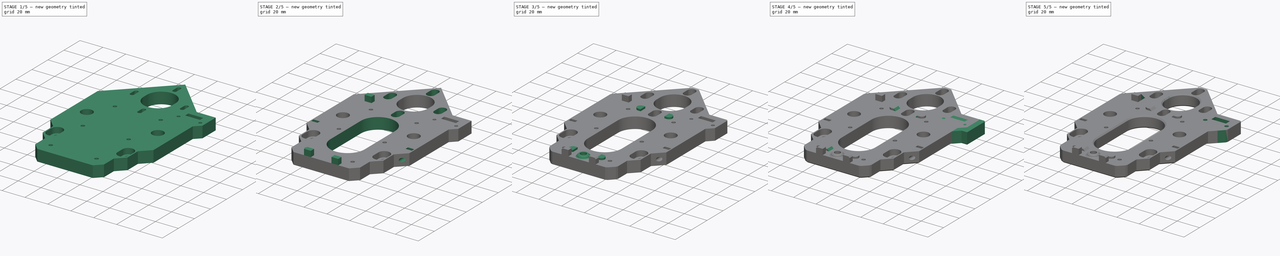
[diagram: build sequence overview — one tinted view per stage of 5, left to right]
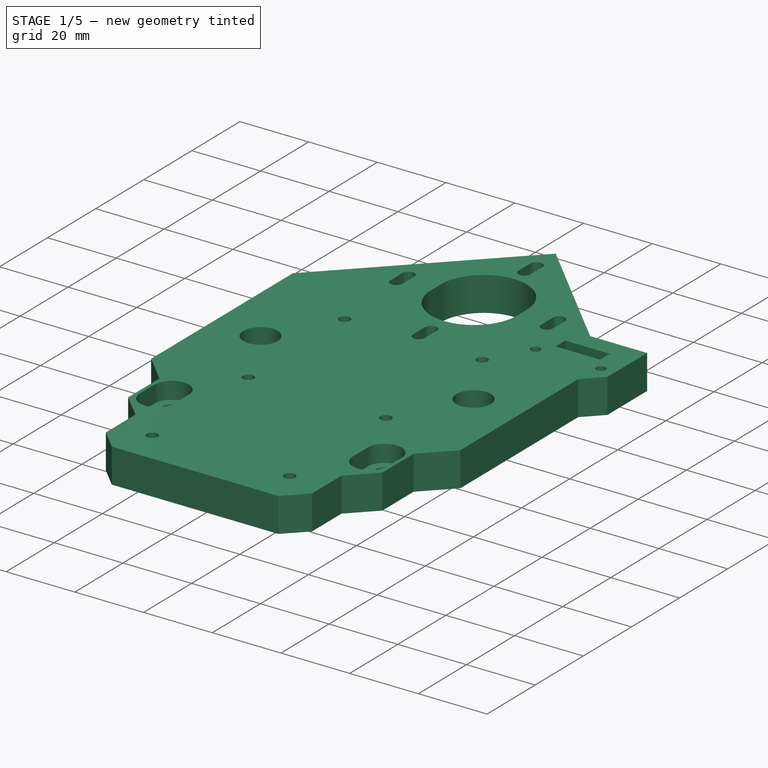
[diagram: stage 1 of 5 — iso view after this stage's code; geometry added in this stage tinted green]
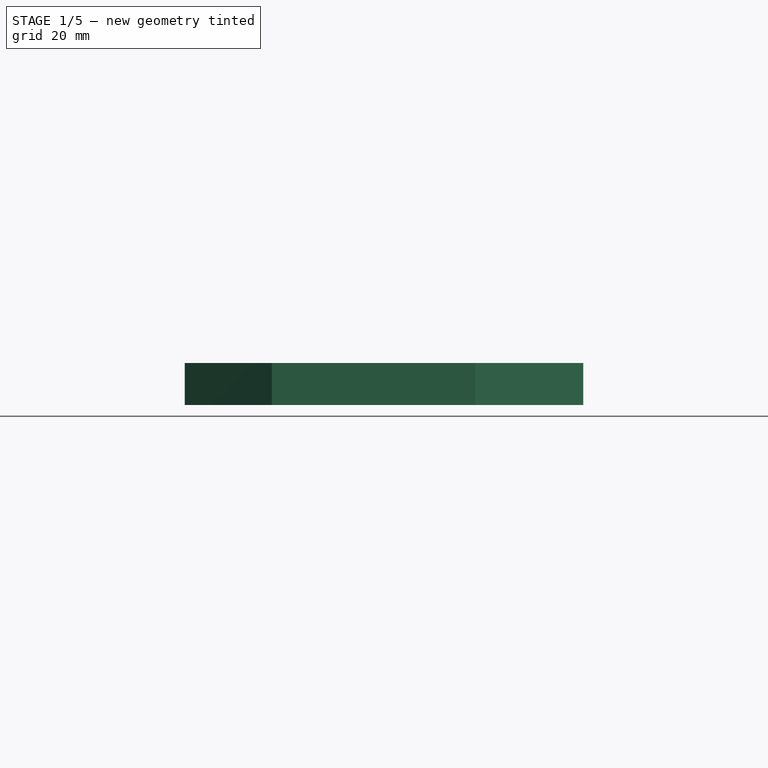
[diagram: stage 1 of 5 — front view after this stage's code; geometry added in this stage tinted green]
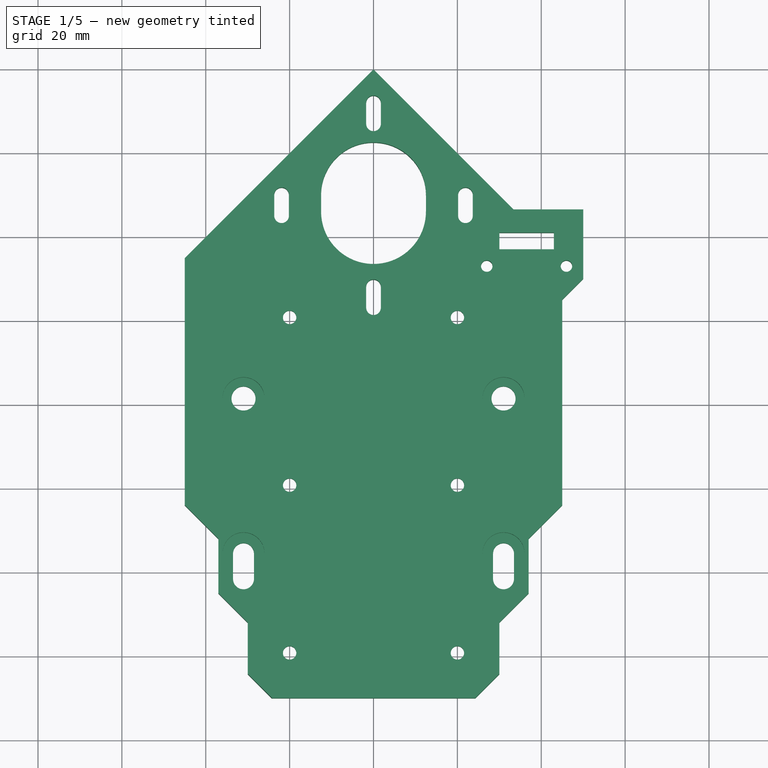
[diagram: stage 1 of 5 — top view after this stage's code; geometry added in this stage tinted green]
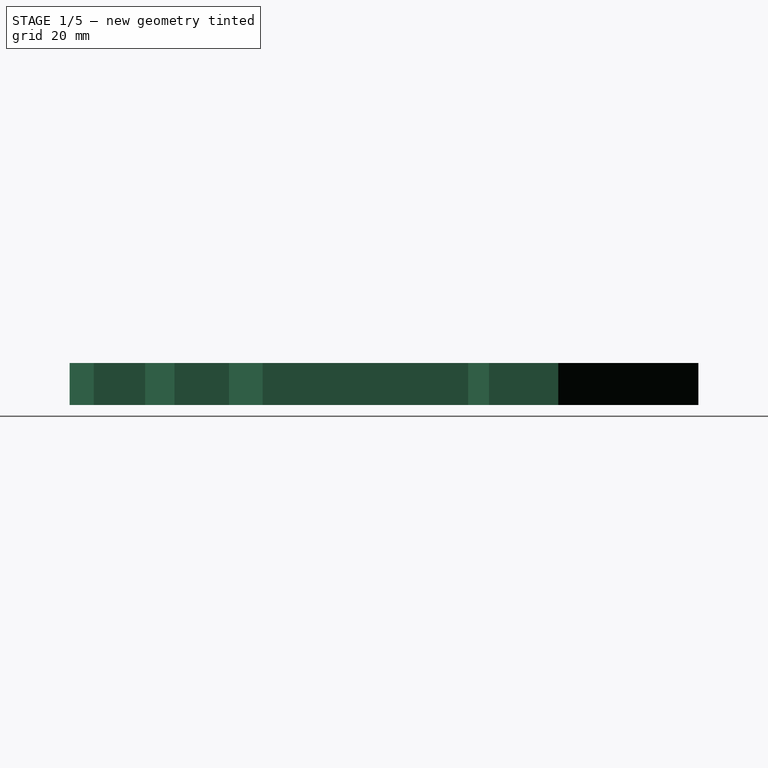
[diagram: stage 1 of 5 — right view after this stage's code; geometry added in this stage tinted green]
FCSTD DOCUMENT  (FreeCAD 0.20R29410 (Git))
Label: x-gantry-front
License: All rights reserved
LicenseURL: http://en.wikipedia.org/wiki/All_rights_reserved
objects: Sketcher::SketchObject×20, PartDesign::Pocket×12, PartDesign::Pad×9, PartDesign::Chamfer×6, PartDesign::Plane×5, PartDesign::Hole×3, PartDesign::Line×1, PartDesign::Mirrored×1, PartDesign::Body×1
note: 88 computed .brp shape members not serialized (recipe doc carries the construction recipe); baked Part::Feature solids carry a one-line shape summary decoded from their .brp

FEATURE [Sketcher::SketchObject] Sketch  label="Base"
  FullyConstrained = true
  MapMode = 5
  Support = -> [XY_Plane]
  sketch-geometry (56):
    g0: LineSegment StartX=-31 StartY=41.5 StartZ=0 EndX=31 EndY=41.5 EndZ=0
    g1: LineSegment StartX=0 StartY=41.5 StartZ=0 EndX=0 EndY=0 EndZ=0
    g2: Circle CenterX=-31 CenterY=41.5 CenterZ=0 NormalX=0 NormalY=0 NormalZ=1 AngleXU=0 Radius=2.875
    g3: Circle CenterX=31 CenterY=41.5 CenterZ=0 NormalX=0 NormalY=0 NormalZ=1 AngleXU=0 Radius=2.875
    g4: Circle CenterX=-31 CenterY=41.5 CenterZ=0 NormalX=0 NormalY=0 NormalZ=1 AngleXU=0 Radius=12.5
    g5: Circle CenterX=31 CenterY=41.5 CenterZ=0 NormalX=0 NormalY=0 NormalZ=1 AngleXU=0 Radius=12.5
    g6: LineSegment StartX=0 StartY=119.911 StartZ=0 EndX=-45 EndY=74.9106 EndZ=0
    g7: LineSegment StartX=-45 StartY=74.9106 StartZ=0 EndX=-45 EndY=16 EndZ=0
    g8: LineSegment StartX=-24.25 StartY=-30 StartZ=0 EndX=24.25 EndY=-30 EndZ=0
    g9: LineSegment StartX=45 StartY=16 StartZ=0 EndX=45 EndY=74.9106 EndZ=0
    g10: LineSegment StartX=45 StartY=74.9106 StartZ=0 EndX=0 EndY=119.911 EndZ=0
    g11: LineSegment StartX=-29.9106 StartY=90 StartZ=0 EndX=0 EndY=60.0894 EndZ=0
    g12: LineSegment StartX=0 StartY=60.0894 StartZ=0 EndX=29.9106 EndY=90 EndZ=0
    g13: LineSegment StartX=0 StartY=111.92 StartZ=0 EndX=21.9203 EndY=90 EndZ=0
    g14: LineSegment StartX=21.9203 StartY=90 StartZ=0 EndX=0 EndY=68.0797 EndZ=0
    g15: LineSegment StartX=0 StartY=68.0797 StartZ=0 EndX=-21.9203 EndY=90 EndZ=0
    g16: LineSegment StartX=-21.9203 StartY=90 StartZ=0 EndX=0 EndY=111.92 EndZ=0
    g17: LineSegment StartX=-45 StartY=16 StartZ=0 EndX=-37 EndY=8 EndZ=0
    g18: LineSegment StartX=-37 StartY=8 StartZ=0 EndX=-37 EndY=-5 EndZ=0
    g19: LineSegment StartX=45 StartY=16 StartZ=0 EndX=37 EndY=8 EndZ=0
    g20: LineSegment StartX=37 StartY=8 StartZ=0 EndX=37 EndY=-5 EndZ=0
    g21: ArcOfCircle CenterX=-21.9203 CenterY=90 CenterZ=0 NormalX=0 NormalY=0 NormalZ=1 AngleXU=0 Radius=1.75 StartAngle=-2.7e-15 EndAngle=3.14159
    g22: ArcOfCircle CenterX=-21.9203 CenterY=85 CenterZ=0 NormalX=0 NormalY=0 NormalZ=1 AngleXU=0 Radius=1.75 StartAngle=3.14159 EndAngle=6.28319
    g23: LineSegment StartX=-23.6703 StartY=90 StartZ=0 EndX=-23.6703 EndY=85 EndZ=0
    g24: LineSegment StartX=-20.1703 StartY=90 StartZ=0 EndX=-20.1703 EndY=85 EndZ=0
    g25: ArcOfCircle CenterX=0 CenterY=90 CenterZ=0 NormalX=0 NormalY=0 NormalZ=1 AngleXU=0 Radius=12.5 StartAngle=1e-16 EndAngle=3.14159
    g26: ArcOfCircle CenterX=-8e-16 CenterY=86 CenterZ=0 NormalX=0 NormalY=0 NormalZ=1 AngleXU=0 Radius=12.5 StartAngle=3.14159 EndAngle=6.28319
    g27: LineSegment StartX=-12.5 StartY=90 StartZ=0 EndX=-12.5 EndY=86 EndZ=0
    g28: LineSegment StartX=12.5 StartY=90 StartZ=0 EndX=12.5 EndY=86 EndZ=0
    g29: ArcOfCircle CenterX=0 CenterY=68.0797 CenterZ=0 NormalX=0 NormalY=0 NormalZ=1 AngleXU=0 Radius=1.75 StartAngle=1e-15 EndAngle=3.14159
    g30: ArcOfCircle CenterX=0 CenterY=63.0797 CenterZ=0 NormalX=0 NormalY=0 NormalZ=1 AngleXU=0 Radius=1.75 StartAngle=3.14159 EndAngle=6.28319
    g31: LineSegment StartX=-1.75 StartY=68.0797 StartZ=0 EndX=-1.75 EndY=63.0797 EndZ=0
    g32: LineSegment StartX=1.75 StartY=68.0797 StartZ=0 EndX=1.75 EndY=63.0797 EndZ=0
    g33: ArcOfCircle CenterX=21.9203 CenterY=90 CenterZ=0 NormalX=0 NormalY=0 NormalZ=1 AngleXU=0 Radius=1.75 StartAngle=-2.7e-15 EndAngle=3.14159
    g34: ArcOfCircle CenterX=21.9203 CenterY=85 CenterZ=0 NormalX=0 NormalY=0 NormalZ=1 AngleXU=0 Radius=1.75 StartAngle=3.14159 EndAngle=6.28319
    g35: LineSegment StartX=20.1703 StartY=90 StartZ=0 EndX=20.1703 EndY=85 EndZ=0
    g36: LineSegment StartX=23.6703 StartY=90 StartZ=0 EndX=23.6703 EndY=85 EndZ=0
    g37: ArcOfCircle CenterX=0 CenterY=111.92 CenterZ=0 NormalX=0 NormalY=0 NormalZ=1 AngleXU=0 Radius=1.75 StartAngle=-9e-16 EndAngle=3.14159
    g38: ArcOfCircle CenterX=-1e-16 CenterY=106.92 CenterZ=0 NormalX=0 NormalY=0 NormalZ=1 AngleXU=0 Radius=1.75 StartAngle=3.14159 EndAngle=6.28319
    g39: LineSegment StartX=-1.75 StartY=111.92 StartZ=0 EndX=-1.75 EndY=106.92 EndZ=0
    g40: LineSegment StartX=1.75 StartY=111.92 StartZ=0 EndX=1.75 EndY=106.92 EndZ=0
    g41: LineSegment StartX=-29.9106 StartY=90 StartZ=0 EndX=29.9106 EndY=90 EndZ=0
    g42: ArcOfCircle CenterX=-31 CenterY=4.5 CenterZ=0 NormalX=0 NormalY=0 NormalZ=1 AngleXU=0 Radius=2.5 StartAngle=0 EndAngle=3.14159
    g43: ArcOfCircle CenterX=-31 CenterY=-1.5 CenterZ=0 NormalX=0 NormalY=0 NormalZ=1 AngleXU=0 Radius=2.5 StartAngle=3.14159 EndAngle=6.28319
    g44: LineSegment StartX=-33.5 StartY=4.5 StartZ=0 EndX=-33.5 EndY=-1.5 EndZ=0
    g45: LineSegment StartX=-28.5 StartY=4.5 StartZ=0 EndX=-28.5 EndY=-1.5 EndZ=0
    g46: ArcOfCircle CenterX=31 CenterY=4.5 CenterZ=0 NormalX=0 NormalY=0 NormalZ=1 AngleXU=0 Radius=2.5 StartAngle=2e-16 EndAngle=3.14159
    g47: ArcOfCircle CenterX=31 CenterY=-1.5 CenterZ=0 NormalX=0 NormalY=0 NormalZ=1 AngleXU=0 Radius=2.5 StartAngle=3.14159 EndAngle=6.28319
    g48: LineSegment StartX=28.5 StartY=4.5 StartZ=0 EndX=28.5 EndY=-1.5 EndZ=0
    g49: LineSegment StartX=33.5 StartY=4.5 StartZ=0 EndX=33.5 EndY=-1.5 EndZ=0
    g50: LineSegment StartX=-37 StartY=-5 StartZ=0 EndX=-30 EndY=-12 EndZ=0
    g51: LineSegment StartX=-30 StartY=-12 StartZ=0 EndX=-30 EndY=-24.25 EndZ=0
    g52: LineSegment StartX=-30 StartY=-24.25 StartZ=0 EndX=-24.25 EndY=-30 EndZ=0
    g53: LineSegment StartX=37 StartY=-5 StartZ=0 EndX=30 EndY=-12 EndZ=0
    g54: LineSegment StartX=30 StartY=-12 StartZ=0 EndX=30 EndY=-24.25 EndZ=0
    g55: LineSegment StartX=30 StartY=-24.25 StartZ=0 EndX=24.25 EndY=-30 EndZ=0
  constraints (142):
    c: Horizontal(g0)
    c: PointOnObject(g1,g0)
    c: Coincident(g1,g-1)
    c: DistanceY(g1,g1) = 41.5
    c: DistanceX(g0,g0) = 62
    c: Symmetric(g0,g0,g1)
    c: Coincident(g2,g0)
    c: Coincident(g3,g0)
    c: Diameter(g3) = 5.75
    c: Diameter(g2) = 5.75
    c: Coincident(g4,g2)
    c: Coincident(g5,g3)
    c: Diameter(g5) = 25
    c: Diameter(g4) = 25
    c: PointOnObject(g6,g-2)
    c: Coincident(g6,g7)
    c: Vertical(g7)
    c: Vertical(g9)
    c: Coincident(g9,g10)
    c: Coincident(g10,g6)
    c: Angle(g6,g-2) = 0.785398
    c: Symmetric(g9,g6,g-2)
    c: PointOnObject(g11,g6)
    c: PointOnObject(g11,g-2)
    c: Coincident(g11,g12)
    c: PointOnObject(g12,g10)
    c: Perpendicular(g10,g12)
    c: Perpendicular(g6,g11)
    c: Distance(g6,g12) = 42.3
    c: Symmetric(g8,g8,g-2)
    c: PointOnObject(g13,g-2)
    c: Coincident(g13,g14)
    c: PointOnObject(g14,g-2)
    c: Coincident(g14,g15)
    c: Coincident(g15,g16)
    c: Coincident(g16,g13)
    c: Parallel(g13,g10)
    c: Parallel(g16,g6)
    c: Parallel(g15,g11)
    c: Parallel(g14,g12)
    c: Distance(g13,g15) = 31
    c: Distance(g13,g10) = 5.65
    c: Distance(g8,g-1) = 30
    c: Coincident(g17,g18)
    c: Vertical(g18)
    c: Coincident(g7,g17)
    c: Angle(g17,g7) = 2.35619
    c: Coincident(g19,g20)
    c: Vertical(g20)
    c: Coincident(g9,g19)
    c: Angle(g9,g19) = 2.35619
    c: DistanceY(g-1,g17) = 8
    c: DistanceX(g6,g9) = 90
    c: Tangent(g21,g24)
    c: Tangent(g21,g23)
    c: Tangent(g23,g22)
    c: Tangent(g24,g22)
    c: Vertical(g23)
    c: Equal(g21,g22)
    c: Diameter(g21) = 3.5
    c: Coincident(g21,g15)
    c: DistanceY(g22,g21) = 5
    c: Tangent(g25,g28)
    c: Tangent(g25,g27)
    c: Tangent(g27,g26)
    c: Tangent(g28,g26)
    c: Vertical(g27)
    c: Equal(g25,g26)
    c: PointOnObject(g25,g-2)
    c: DistanceY(g-1,g25) = 90
    c: Diameter(g25) = 25
    c: DistanceY(g26,g25) = 4
    c: Tangent(g29,g32)
    c: Tangent(g29,g31)
    c: Tangent(g31,g30)
    c: Tangent(g32,g30)
    c: Vertical(g31)
    c: Equal(g29,g30)
    c: Diameter(g29) = 3.5
    c: DistanceY(g30,g29) = 5
    c: Coincident(g29,g14)
    c: Tangent(g33,g36)
    c: Tangent(g33,g35)
    c: Tangent(g35,g34)
    c: Tangent(g36,g34)
    c: Vertical(g35)
    c: Equal(g33,g34)
    c: Diameter(g33) = 3.5
    c: DistanceY(g34,g33) = 5
    c: Coincident(g13,g33)
    c: Tangent(g37,g40)
    c: Tangent(g37,g39)
    c: Tangent(g39,g38)
    c: Tangent(g40,g38)
    c: Vertical(g39)
    c: Equal(g37,g38)
    c: Coincident(g37,g13)
    c: Diameter(g37) = 3.5
    c: DistanceY(g38,g37) = 5
    c: Coincident(g41,g11)
    c: Coincident(g41,g12)
    c: PointOnObject(g25,g41)
    c: Tangent(g42,g45) = 1.5708
    c: Tangent(g42,g44) = -1.5708
    c: Tangent(g44,g43) = -1.5708
    c: Tangent(g45,g43) = 1.5708
    c: Vertical(g43,g2)
    c: Diameter(g42) = 5
    c: Tangent(g46,g49) = 1.5708
    c: Tangent(g46,g48) = -1.5708
    c: Tangent(g48,g47) = -1.5708
    c: Tangent(g49,g47) = 1.5708
    c: Vertical(g48)
    c: Equal(g42,g46)
    c: Vertical(g3,g46)
    c: Equal(g45,g49)
    c: DistanceY(g43,g42) = 6
    c: Horizontal(g42,g46)
    c: Equal(g46,g47)
    c: Coincident(g51,g50)
    c: Vertical(g51)
    c: Coincident(g52,g51)
    c: Coincident(g54,g53)
    c: Coincident(g55,g54)
    c: Horizontal(g50,g53)
    c: Coincident(g18,g50)
    c: Coincident(g53,g20)
    c: Coincident(g55,g8)
    c: Coincident(g52,g8)
    c: Vertical(g54)
    c: Symmetric(g50,g53,g-2)
    c: DistanceX(g50,g53) = 60
    c: Angle(g55,g8) = 2.35619
    c: DistanceY(g18,g1) = 5
    c: Angle(g20,g53) = 2.35619
    c: Symmetric(g19,g17,g-2)
    c: DistanceX(g17,g19) = 74
    c: DistanceY(g-1,g42) = 4.5
    c: Equal(g43,g42)
    c: DistanceY(g-1,g42) = 4.5
    c: DistanceX(g8,g8) = 48.5
    c: Horizontal(g51,g54)
FEATURE [PartDesign::Pad] Pad
  AllowMultiFace = false
  Direction = (1,1,1)
  Length = 10
  Length2 = 100
  Profile = -> Sketch
  Refine = true
  Type = 0
FEATURE [PartDesign::Plane] DatumPlane
  Length = 124.255
  MapMode = 5
  Placement = pos=(0,0,10) rot=(0,0,1;0rad)
  ResizeMode = 0
  Support = -> [Pad]
  Width = 171.338
FEATURE [Sketcher::SketchObject] Sketch001  label="WheelM5cutoutslots"
  FullyConstrained = true
  MapMode = 5
  Placement = pos=(0,0,10) rot=(0,0,1;0rad)
  Support = -> [DatumPlane]
  sketch-geometry (10):
    g0: Circle CenterX=-31 CenterY=41.5 CenterZ=0 NormalX=0 NormalY=0 NormalZ=1 AngleXU=0 Radius=5
    g1: Circle CenterX=31 CenterY=41.5 CenterZ=0 NormalX=0 NormalY=0 NormalZ=1 AngleXU=0 Radius=5
    g2: ArcOfCircle CenterX=31 CenterY=4.5 CenterZ=0 NormalX=0 NormalY=0 NormalZ=1 AngleXU=0 Radius=5 StartAngle=0 EndAngle=3.14159
    g3: ArcOfCircle CenterX=31 CenterY=-1.5 CenterZ=0 NormalX=0 NormalY=0 NormalZ=1 AngleXU=0 Radius=5 StartAngle=3.14159 EndAngle=6.28319
    g4: LineSegment StartX=26 StartY=4.5 StartZ=0 EndX=26 EndY=-1.5 EndZ=0
    g5: LineSegment StartX=36 StartY=4.5 StartZ=0 EndX=36 EndY=-1.5 EndZ=0
    g6: ArcOfCircle CenterX=-31 CenterY=4.5 CenterZ=0 NormalX=0 NormalY=0 NormalZ=1 AngleXU=0 Radius=5 StartAngle=5e-16 EndAngle=3.14159
    g7: ArcOfCircle CenterX=-31 CenterY=-1.5 CenterZ=0 NormalX=0 NormalY=0 NormalZ=1 AngleXU=0 Radius=5 StartAngle=3.14159 EndAngle=6.28319
    g8: LineSegment StartX=-36 StartY=4.5 StartZ=0 EndX=-36 EndY=-1.5 EndZ=0
    g9: LineSegment StartX=-26 StartY=4.5 StartZ=0 EndX=-26 EndY=-1.5 EndZ=0
  constraints (25):
    c: Diameter(g1) = 10
    c: DistanceY(g-1,g1) = 41.5
    c: DistanceX(g0,g1) = 62
    c: Symmetric(g0,g1,g-2)
    c: Tangent(g2,g5) = 1.5708
    c: Tangent(g2,g4) = -1.5708
    c: Tangent(g4,g3) = -1.5708
    c: Tangent(g5,g3) = 1.5708
    c: Vertical(g4)
    c: Tangent(g6,g9) = 1.5708
    c: Tangent(g6,g8) = -1.5708
    c: Tangent(g8,g7) = -1.5708
    c: Tangent(g9,g7) = 1.5708
    c: Equal(g6,g7)
    c: Horizontal(g6,g2)
    c: Horizontal(g7,g3)
    c: Equal(g2,g6)
    c: Diameter(g6) = 10
    c: Vertical(g7,g0)
    c: Vertical(g3,g1)
    c: DistanceY(g9,g9) = 6
    c: Horizontal(g6,g6)
    c: Horizontal(g2,g2)
    c: DistanceY(g-1,g6) = 4.5
    c: Equal(g1,g0)
FEATURE [Sketcher::SketchObject] Sketch003  label="M3Nuts"
  FullyConstrained = true
  MapMode = 5
  Support = -> [XY_Plane]
  sketch-geometry (44):
    g0: LineSegment StartX=-22.875 StartY=59.0901 StartZ=0 EndX=-20 EndY=57.4302 EndZ=0
    g1: LineSegment StartX=-20 StartY=57.4302 StartZ=0 EndX=-17.125 EndY=59.0901 EndZ=0
    g2: LineSegment StartX=-17.125 StartY=59.0901 StartZ=0 EndX=-17.125 EndY=62.4099 EndZ=0
    g3: LineSegment StartX=-17.125 StartY=62.4099 StartZ=0 EndX=-20 EndY=64.0698 EndZ=0
    g4: LineSegment StartX=-20 StartY=64.0698 StartZ=0 EndX=-22.875 EndY=62.4099 EndZ=0
    g5: LineSegment StartX=-22.875 StartY=62.4099 StartZ=0 EndX=-22.875 EndY=59.0901 EndZ=0
    g6: Circle CenterX=-20 CenterY=60.75 CenterZ=0 NormalX=0 NormalY=0 NormalZ=1 AngleXU=0 Radius=3.31976
    g7: LineSegment StartX=17.125 StartY=-20.9099 StartZ=0 EndX=20 EndY=-22.5698 EndZ=0
    g8: LineSegment StartX=20 StartY=-22.5698 StartZ=0 EndX=22.875 EndY=-20.9099 EndZ=0
    g9: LineSegment StartX=22.875 StartY=-20.9099 StartZ=0 EndX=22.875 EndY=-17.5901 EndZ=0
    g10: LineSegment StartX=22.875 StartY=-17.5901 StartZ=0 EndX=20 EndY=-15.9302 EndZ=0
    g11: LineSegment StartX=20 StartY=-15.9302 StartZ=0 EndX=17.125 EndY=-17.5901 EndZ=0
    g12: LineSegment StartX=17.125 StartY=-17.5901 StartZ=0 EndX=17.125 EndY=-20.9099 EndZ=0
    g13: Circle CenterX=20 CenterY=-19.25 CenterZ=0 NormalX=0 NormalY=0 NormalZ=1 AngleXU=0 Radius=3.31976
    g14: LineSegment StartX=17.125 StartY=59.0901 StartZ=0 EndX=20 EndY=57.4302 EndZ=0
    g15: LineSegment StartX=20 StartY=57.4302 StartZ=0 EndX=22.875 EndY=59.0901 EndZ=0
    g16: LineSegment StartX=22.875 StartY=59.0901 StartZ=0 EndX=22.875 EndY=62.4099 EndZ=0
    g17: LineSegment StartX=22.875 StartY=62.4099 StartZ=0 EndX=20 EndY=64.0698 EndZ=0
    g18: LineSegment StartX=20 StartY=64.0698 StartZ=0 EndX=17.125 EndY=62.4099 EndZ=0
    g19: LineSegment StartX=17.125 StartY=62.4099 StartZ=0 EndX=17.125 EndY=59.0901 EndZ=0
    g20: Circle CenterX=20 CenterY=60.75 CenterZ=0 NormalX=0 NormalY=0 NormalZ=1 AngleXU=0 Radius=3.31976
    g21: LineSegment StartX=-22.875 StartY=19.0901 StartZ=0 EndX=-20 EndY=17.4302 EndZ=0
    g22: LineSegment StartX=-20 StartY=17.4302 StartZ=0 EndX=-17.125 EndY=19.0901 EndZ=0
    g23: LineSegment StartX=-17.125 StartY=19.0901 StartZ=0 EndX=-17.125 EndY=22.4099 EndZ=0
    g24: LineSegment StartX=-17.125 StartY=22.4099 StartZ=0 EndX=-20 EndY=24.0698 EndZ=0
    g25: LineSegment StartX=-20 StartY=24.0698 StartZ=0 EndX=-22.875 EndY=22.4099 EndZ=0
    g26: LineSegment StartX=-22.875 StartY=22.4099 StartZ=0 EndX=-22.875 EndY=19.0901 EndZ=0
    g27: Circle CenterX=-20 CenterY=20.75 CenterZ=0 NormalX=0 NormalY=0 NormalZ=1 AngleXU=0 Radius=3.31976
    g28: LineSegment StartX=-22.875 StartY=-20.9099 StartZ=0 EndX=-20 EndY=-22.5698 EndZ=0
    g29: LineSegment StartX=-20 StartY=-22.5698 StartZ=0 EndX=-17.125 EndY=-20.9099 EndZ=0
    g30: LineSegment StartX=-17.125 StartY=-20.9099 StartZ=0 EndX=-17.125 EndY=-17.5901 EndZ=0
    g31: LineSegment StartX=-17.125 StartY=-17.5901 StartZ=0 EndX=-20 EndY=-15.9302 EndZ=0
    g32: LineSegment StartX=-20 StartY=-15.9302 StartZ=0 EndX=-22.875 EndY=-17.5901 EndZ=0
    g33: LineSegment StartX=-22.875 StartY=-17.5901 StartZ=0 EndX=-22.875 EndY=-20.9099 EndZ=0
    g34: Circle CenterX=-20 CenterY=-19.25 CenterZ=0 NormalX=0 NormalY=0 NormalZ=1 AngleXU=0 Radius=3.31976
    g35: LineSegment StartX=17.125 StartY=19.0901 StartZ=0 EndX=20 EndY=17.4302 EndZ=0
    g36: LineSegment StartX=20 StartY=17.4302 StartZ=0 EndX=22.875 EndY=19.0901 EndZ=0
    g37: LineSegment StartX=22.875 StartY=19.0901 StartZ=0 EndX=22.875 EndY=22.4099 EndZ=0
    g38: LineSegment StartX=22.875 StartY=22.4099 StartZ=0 EndX=20 EndY=24.0698 EndZ=0
    g39: LineSegment StartX=20 StartY=24.0698 StartZ=0 EndX=17.125 EndY=22.4099 EndZ=0
    g40: LineSegment StartX=17.125 StartY=22.4099 StartZ=0 EndX=17.125 EndY=19.0901 EndZ=0
    g41: Circle CenterX=20 CenterY=20.75 CenterZ=0 NormalX=0 NormalY=0 NormalZ=1 AngleXU=0 Radius=3.31976
    g42: LineSegment StartX=-20 StartY=-19.25 StartZ=0 EndX=-20 EndY=60.75 EndZ=0
    g43: LineSegment StartX=20 StartY=60.75 StartZ=0 EndX=20 EndY=-19.25 EndZ=0
  constraints (105):
    c: Coincident(g0,g1)
    c: Coincident(g1,g2)
    c: Coincident(g2,g3)
    c: Coincident(g3,g4)
    c: Coincident(g4,g5)
    c: Coincident(g5,g0)
    c: Equal(g0, g1-g5) x5
    c: PointOnObject(g0,g6)
    c: PointOnObject(g1,g6)
    c: PointOnObject(g2,g6)
    c: PointOnObject(g3,g6)
    c: PointOnObject(g4,g6)
    c: PointOnObject(g5,g6)
    c: Coincident(g7,g8)
    c: Coincident(g8,g9)
    c: Coincident(g9,g10)
    c: Coincident(g10,g11)
    c: Coincident(g11,g12)
    c: Coincident(g12,g7)
    c: Equal(g7, g8-g12) x5
    c: PointOnObject(g7,g13)
    c: PointOnObject(g8,g13)
    c: PointOnObject(g9,g13)
    c: PointOnObject(g10,g13)
    c: PointOnObject(g11,g13)
    c: PointOnObject(g12,g13)
    c: Coincident(g14,g15)
    c: Coincident(g15,g16)
    c: Coincident(g16,g17)
    c: Coincident(g17,g18)
    c: Coincident(g18,g19)
    c: Coincident(g19,g14)
    c: Equal(g14, g15-g19) x5
    c: PointOnObject(g14,g20)
    c: PointOnObject(g15,g20)
    c: PointOnObject(g16,g20)
    c: PointOnObject(g17,g20)
    c: PointOnObject(g18,g20)
    c: PointOnObject(g19,g20)
    c: Coincident(g21,g22)
    c: Coincident(g22,g23)
    c: Coincident(g23,g24)
    c: Coincident(g24,g25)
    c: Coincident(g25,g26)
    c: Coincident(g26,g21)
    c: Equal(g21, g22-g26) x5
    c: PointOnObject(g21,g27)
    c: PointOnObject(g22,g27)
    c: PointOnObject(g23,g27)
    c: PointOnObject(g24,g27)
    c: PointOnObject(g25,g27)
    c: PointOnObject(g26,g27)
    c: Coincident(g28,g29)
    c: Coincident(g29,g30)
    c: Coincident(g30,g31)
    c: Coincident(g31,g32)
    c: Coincident(g32,g33)
    c: Coincident(g33,g28)
    c: Equal(g28, g29-g33) x5
    c: PointOnObject(g28,g34)
    c: PointOnObject(g29,g34)
    c: PointOnObject(g30,g34)
    c: PointOnObject(g31,g34)
    c: PointOnObject(g32,g34)
    c: PointOnObject(g33,g34)
    c: Coincident(g35,g36)
    c: Coincident(g36,g37)
    c: Coincident(g37,g38)
    c: Coincident(g38,g39)
    c: Coincident(g39,g40)
    c: Coincident(g40,g35)
    c: Equal(g35, g36-g40) x5
    c: PointOnObject(g35,g41)
    c: PointOnObject(g36,g41)
    c: PointOnObject(g37,g41)
    c: PointOnObject(g38,g41)
    c: PointOnObject(g39,g41)
    c: PointOnObject(g40,g41)
    c: Vertical(g5)
    c: Vertical(g9)
    c: Vertical(g33)
    c: Vertical(g26)
    c: Vertical(g16)
    c: Vertical(g37)
    c: Vertical(g42)
    c: PointOnObject(g27,g42)
    c: Coincident(g6,g42)
    c: Coincident(g42,g34)
    c: DistanceX(g34,g-1) = 20
    c: DistanceY(g34,g-1) = 19.25
    c: DistanceY(g-1,g27) = 20.75
    c: DistanceY(g-1,g6) = 60.75
    c: PointOnObject(g41,g43)
    c: Vertical(g43)
    c: Coincident(g20,g43)
    c: Coincident(g43,g13)
    c: DistanceY(g-1,g41) = 20.75
    c: DistanceY(g-1,g20) = 60.75
    c: Equal(g34,g13)
    c: Equal(g13,g27)
    c: Equal(g27,g41)
    c: Equal(g41,g6)
    c: Equal(g6,g20)
    c: Symmetric(g13,g34,g-2)
    c: Distance(g14,g16) = 5.75
FEATURE [Sketcher::SketchObject] Sketch005  label="LimitSwitchCutOuts"
  FullyConstrained = true
  MapMode = 5
  Placement = pos=(0,0,10) rot=(0,0,1;0rad)
  Support = -> [DatumPlane]
  sketch-geometry (15):
    g0: Circle CenterX=27 CenterY=73 CenterZ=0 NormalX=0 NormalY=0 NormalZ=1 AngleXU=0 Radius=1.375
    g1: Circle CenterX=46 CenterY=73 CenterZ=0 NormalX=0 NormalY=0 NormalZ=1 AngleXU=0 Radius=1.375
    g2: LineSegment StartX=30 StartY=81 StartZ=0 EndX=43 EndY=81 EndZ=0
    g3: LineSegment StartX=43 StartY=81 StartZ=0 EndX=43 EndY=77 EndZ=0
    g4: LineSegment StartX=43 StartY=77 StartZ=0 EndX=30 EndY=77 EndZ=0
    g5: LineSegment StartX=30 StartY=77 StartZ=0 EndX=30 EndY=81 EndZ=0
    g6: LineSegment StartX=50.75 StartY=83.5 StartZ=0 EndX=53.75 EndY=83.5 EndZ=0
    g7: LineSegment StartX=53.75 StartY=83.5 StartZ=0 EndX=53.75 EndY=72.5 EndZ=0
    g8: LineSegment StartX=53.75 StartY=72.5 StartZ=0 EndX=50.75 EndY=72.5 EndZ=0
    g9: LineSegment StartX=50.75 StartY=72.5 StartZ=0 EndX=50.75 EndY=83.5 EndZ=0
    g10: LineSegment StartX=27 StartY=73 StartZ=0 EndX=46 EndY=73 EndZ=0
    g11: LineSegment StartX=24 StartY=86 StartZ=0 EndX=63.5 EndY=86 EndZ=0
    g12: LineSegment StartX=63.5 StartY=86 StartZ=0 EndX=63.5 EndY=70 EndZ=0
    g13: LineSegment StartX=63.5 StartY=70 StartZ=0 EndX=24 EndY=70 EndZ=0
    g14: LineSegment StartX=24 StartY=70 StartZ=0 EndX=24 EndY=86 EndZ=0
  constraints (44):
    c: Coincident(g2,g3)
    c: Coincident(g3,g4)
    c: Coincident(g4,g5)
    c: Coincident(g5,g2)
    c: Horizontal(g2)
    c: Horizontal(g4)
    c: Vertical(g3)
    c: Vertical(g5)
    c: Coincident(g6,g7)
    c: Coincident(g7,g8)
    c: Coincident(g8,g9)
    c: Coincident(g9,g6)
    c: Horizontal(g6)
    c: Horizontal(g8)
    c: Vertical(g7)
    c: Vertical(g9)
    c: Coincident(g10,g0)
    c: Coincident(g10,g1)
    c: Horizontal(g10)
    c: Diameter(g0) = 2.75
    c: Diameter(g1) = 2.75
    c: Coincident(g11,g12)
    c: Coincident(g12,g13)
    c: Coincident(g13,g14)
    c: Coincident(g14,g11)
    c: Horizontal(g11)
    c: Horizontal(g13)
    c: Vertical(g12)
    c: Vertical(g14)
    c: DistanceX(g13,g0) = 3
    c: DistanceY(g13,g0) = 3
    c: DistanceY(g3,g3) = 4
    c: DistanceX(g4,g4) = 13
    c: DistanceY(g13,g4) = 7
    c: DistanceY(g12,g12) = 16
    c: DistanceX(g6,g6) = 3
    c: DistanceY(g9,g9) = 11
    c: DistanceX(g13,g6) = 26.75
    c: DistanceX(g11,g11) = 39.5
    c: DistanceX(g10,g10) = 19
    c: DistanceX(g13,g4) = 6
    c: DistanceY(g13,g8) = 2.5
    c: DistanceY(g-1,g13) = 70
    c: DistanceX(g-1,g13) = 24
FEATURE [Sketcher::SketchObject] Sketch006  label="LimitSwitchEar"
  FullyConstrained = true
  MapMode = 5
  Placement = pos=(0,0,10) rot=(0,0,1;0rad)
  Support = -> [DatumPlane]
  sketch-geometry (5):
    g0: LineSegment StartX=45 StartY=65 StartZ=0 EndX=50 EndY=70 EndZ=0
    g1: LineSegment StartX=50 StartY=70 StartZ=0 EndX=50 EndY=86.5 EndZ=0
    g2: LineSegment StartX=50 StartY=86.5 StartZ=0 EndX=33.35 EndY=86.5 EndZ=0
    g3: LineSegment StartX=33.35 StartY=86.5 StartZ=0 EndX=45 EndY=74.85 EndZ=0
    g4: LineSegment StartX=45 StartY=74.85 StartZ=0 EndX=45 EndY=65 EndZ=0
  constraints (15):
    c: Horizontal(g2)
    c: Vertical(g1)
    c: Perpendicular(g0,g3)
    c: Angle(g3,g2) = 0.785398
    c: Coincident(g3,g2)
    c: Coincident(g0,g1)
    c: Coincident(g1,g2)
    c: DistanceX(g0,g0) = 5
    c: Coincident(g4,g3)
    c: Vertical(g4)
    c: Coincident(g0,g4)
    c: DistanceY(g-1,g3) = 74.85
    c: DistanceX(g-1,g3) = 45
    c: DistanceY(g-1,g1) = 86.5
    c: DistanceY(g-1,g0) = 65
FEATURE [Sketcher::SketchObject] Sketch013  label="MotorSlots"
  FullyConstrained = true
  MapMode = 5
  Placement = pos=(0,0,10) rot=(0,0,1;0rad)
  Support = -> [DatumPlane]
  sketch-geometry (17):
    g0: ArcOfCircle CenterX=0 CenterY=112 CenterZ=0 NormalX=0 NormalY=0 NormalZ=1 AngleXU=0 Radius=3.5 StartAngle=-9e-16 EndAngle=3.14159
    g1: ArcOfCircle CenterX=2e-16 CenterY=107 CenterZ=0 NormalX=0 NormalY=0 NormalZ=1 AngleXU=0 Radius=3.5 StartAngle=3.14159 EndAngle=6.28319
    g2: LineSegment StartX=-3.5 StartY=112 StartZ=0 EndX=-3.5 EndY=107 EndZ=0
    g3: LineSegment StartX=3.5 StartY=112 StartZ=0 EndX=3.5 EndY=107 EndZ=0
    g4: ArcOfCircle CenterX=0 CenterY=68.25 CenterZ=0 NormalX=0 NormalY=0 NormalZ=1 AngleXU=0 Radius=3.5 StartAngle=1.7e-15 EndAngle=3.14159
    g5: ArcOfCircle CenterX=2e-16 CenterY=63.25 CenterZ=0 NormalX=0 NormalY=0 NormalZ=1 AngleXU=0 Radius=3.5 StartAngle=3.14159 EndAngle=6.28319
    g6: LineSegment StartX=-3.5 StartY=68.25 StartZ=0 EndX=-3.5 EndY=63.25 EndZ=0
    g7: LineSegment StartX=3.5 StartY=68.25 StartZ=0 EndX=3.5 EndY=63.25 EndZ=0
    g8: ArcOfCircle CenterX=21.9 CenterY=90 CenterZ=0 NormalX=0 NormalY=0 NormalZ=1 AngleXU=0 Radius=3.5 StartAngle=6e-16 EndAngle=3.14159
    g9: ArcOfCircle CenterX=21.9 CenterY=85 CenterZ=0 NormalX=0 NormalY=0 NormalZ=1 AngleXU=0 Radius=3.5 StartAngle=3.14159 EndAngle=6.28319
    g10: LineSegment StartX=18.4 StartY=90 StartZ=0 EndX=18.4 EndY=85 EndZ=0
    g11: LineSegment StartX=25.4 StartY=90 StartZ=0 EndX=25.4 EndY=85 EndZ=0
    g12: ArcOfCircle CenterX=-21.9 CenterY=90 CenterZ=0 NormalX=0 NormalY=0 NormalZ=1 AngleXU=0 Radius=3.5 StartAngle=1.7e-15 EndAngle=3.14159
    g13: ArcOfCircle CenterX=-21.9 CenterY=85 CenterZ=0 NormalX=0 NormalY=0 NormalZ=1 AngleXU=0 Radius=3.5 StartAngle=3.14159 EndAngle=6.28319
    g14: LineSegment StartX=-25.4 StartY=90 StartZ=0 EndX=-25.4 EndY=85 EndZ=0
    g15: LineSegment StartX=-18.4 StartY=90 StartZ=0 EndX=-18.4 EndY=85 EndZ=0
    g16: LineSegment StartX=-21.9 StartY=85 StartZ=0 EndX=21.9 EndY=85 EndZ=0
  constraints (41):
    c: Tangent(g0,g3)
    c: Tangent(g0,g2)
    c: Tangent(g2,g1)
    c: Tangent(g3,g1)
    c: Vertical(g2)
    c: Equal(g0,g1)
    c: PointOnObject(g0,g-2)
    c: Tangent(g4,g7)
    c: Tangent(g4,g6)
    c: Tangent(g6,g5)
    c: Tangent(g7,g5)
    c: Vertical(g6)
    c: Equal(g4,g5)
    c: PointOnObject(g4,g-2)
    c: Tangent(g8,g11)
    c: Tangent(g8,g10)
    c: Tangent(g10,g9)
    c: Tangent(g11,g9)
    c: Vertical(g10)
    c: Equal(g8,g9)
    c: Tangent(g12,g15)
    c: Tangent(g12,g14)
    c: Tangent(g14,g13)
    c: Tangent(g15,g13)
    c: Vertical(g14)
    c: Equal(g12,g13)
    c: Diameter(g0) = 7
    c: Diameter(g8) = 7
    c: Diameter(g12) = 7
    c: Diameter(g4) = 7
    c: DistanceY(g13,g12) = 5
    c: Coincident(g16,g13)
    c: Coincident(g16,g9)
    c: DistanceX(g-1,g9) = 21.9
    c: Symmetric(g13,g9,g-2)
    c: DistanceY(g-1,g5) = 63.25
    c: Equal(g14,g2)
    c: Equal(g2,g10)
    c: Equal(g10,g6)
    c: DistanceY(g5,g9) = 21.75
    c: DistanceY(g9,g1) = 22
FEATURE [Sketcher::SketchObject] Sketch014  label="CentreCutout"
  FullyConstrained = true
  MapMode = 2
  Placement = pos=(0,0,10) rot=(0,0,1;0rad)
  Support = -> [DatumPlane]
  sketch-geometry (4):
    g0: ArcOfCircle CenterX=0 CenterY=41 CenterZ=0 NormalX=0 NormalY=0 NormalZ=1 AngleXU=0 Radius=15 StartAngle=2e-16 EndAngle=3.14159
    g1: ArcOfCircle CenterX=5e-16 CenterY=3 CenterZ=0 NormalX=0 NormalY=0 NormalZ=1 AngleXU=0 Radius=15 StartAngle=3.14159 EndAngle=6.28319
    g2: LineSegment StartX=-15 StartY=41 StartZ=0 EndX=-15 EndY=3 EndZ=0
    g3: LineSegment StartX=15 StartY=41 StartZ=0 EndX=15 EndY=3 EndZ=0
  constraints (10):
    c: Tangent(g0,g3) = 1.5708
    c: Tangent(g0,g2) = -1.5708
    c: Tangent(g2,g1) = -1.5708
    c: Tangent(g3,g1) = 1.5708
    c: Vertical(g2)
    c: Equal(g0,g1)
    c: PointOnObject(g0,g-2)
    c: DistanceY(g0,g-1) = -41
    c: DistanceY(g1,g0) = 38
    c: DistanceX(g0,g0) = 15
FEATURE [Sketcher::SketchObject] Sketch015  label="Base001"
  FullyConstrained = true
  MapMode = 5
  Support = -> [XY_Plane]
  sketch-geometry (6):
    g0: Circle CenterX=-20 CenterY=60.75 CenterZ=0 NormalX=0 NormalY=0 NormalZ=1 AngleXU=0 Radius=1.75
    g1: Circle CenterX=-20 CenterY=-19.25 CenterZ=0 NormalX=0 NormalY=0 NormalZ=1 AngleXU=0 Radius=1.75
    g2: Circle CenterX=-20 CenterY=20.75 CenterZ=0 NormalX=0 NormalY=0 NormalZ=1 AngleXU=0 Radius=1.75
    g3: Circle CenterX=20 CenterY=60.75 CenterZ=0 NormalX=0 NormalY=0 NormalZ=1 AngleXU=0 Radius=1.75
    g4: Circle CenterX=20 CenterY=-19.25 CenterZ=0 NormalX=0 NormalY=0 NormalZ=1 AngleXU=0 Radius=1.75
    g5: Circle CenterX=20 CenterY=20.75 CenterZ=0 NormalX=0 NormalY=0 NormalZ=1 AngleXU=0 Radius=1.75
  constraints (18):
    c: Diameter(g1) = 3.5
    c: Equal(g2,g0)
    c: Equal(g0,g3)
    c: Equal(g3,g5)
    c: Equal(g5,g4)
    c: Equal(g4,g1)
    c: Vertical(g1,g2)
    c: Vertical(g2,g0)
    c: DistanceX(g1,g-1) = 20
    c: DistanceX(g-1,g4) = 20
    c: Vertical(g4,g5)
    c: Vertical(g5,g3)
    c: DistanceY(g1,g2) = 40
    c: DistanceY(g2,g0) = 40
    c: Horizontal(g0,g3)
    c: Horizontal(g2,g5)
    c: Horizontal(g1,g4)
    c: DistanceY(g1,g-1) = 19.25
FEATURE [PartDesign::Hole] Hole
  BaseFeature = -> Pad
  CustomThreadClearance = 0
  Depth = 25
  DepthType = 1
  Diameter = 3.2
  DrillForDepth = false
  DrillPoint = 1
  DrillPointAngle = 118
  HoleCutCountersinkAngle = 90
  HoleCutCustomValues = false
  HoleCutDepth = 0
  HoleCutDiameter = 6.1
  HoleCutType = 0
  ModelThread = false
  Profile = -> Sketch015
  Reversed = true
  Tapered = false
  TaperedAngle = 90
  ThreadClass = 0
  ThreadDepth = 23.5
  ThreadDepthType = 0
  ThreadDirection = 0
  ThreadFit = 1
  ThreadSize = 9
  ThreadType = 1
  Threaded = false
  UseCustomThreadClearance = false
FEATURE [PartDesign::Pocket] Pocket
  AllowMultiFace = false
  BaseFeature = -> Hole
  Direction = (1,1,1)
  Length = 5
  Length2 = 100
  Profile = -> Sketch001
  Refine = true
  Type = 0
FEATURE [PartDesign::Pocket] Pocket001
  AllowMultiFace = false
  BaseFeature = -> Pocket
  Direction = (1,1,1)
  Length = 5
  Length2 = 100
  Profile = -> Sketch003
  Refine = true
  Reversed = true
  Type = 0
FEATURE [PartDesign::Pad] Pad002  label="Limit Switch Ear"
  AllowMultiFace = false
  BaseFeature = -> Pocket001
  Direction = (1,1,1)
  Length = 10
  Length2 = 100
  Profile = -> Sketch006
  Reversed = true
  Type = 0
FEATURE [PartDesign::Pocket] Pocket002
  AllowMultiFace = false
  BaseFeature = -> Pad002
  Direction = (1,1,1)
  Length = 10
  Length2 = 100
  Profile = -> Sketch005
  Type = 0
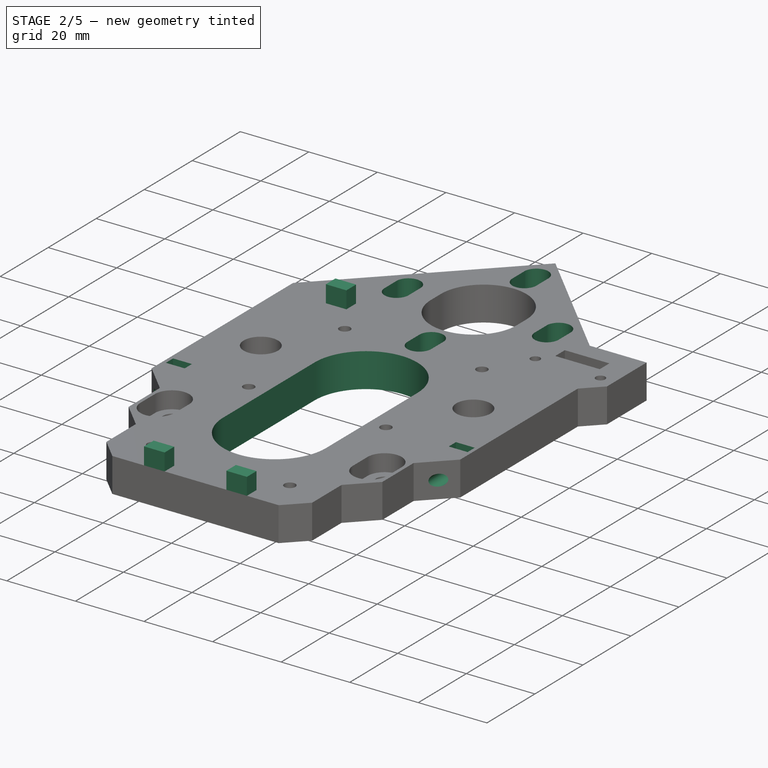
[diagram: stage 2 of 5 — iso view after this stage's code; geometry added in this stage tinted green]
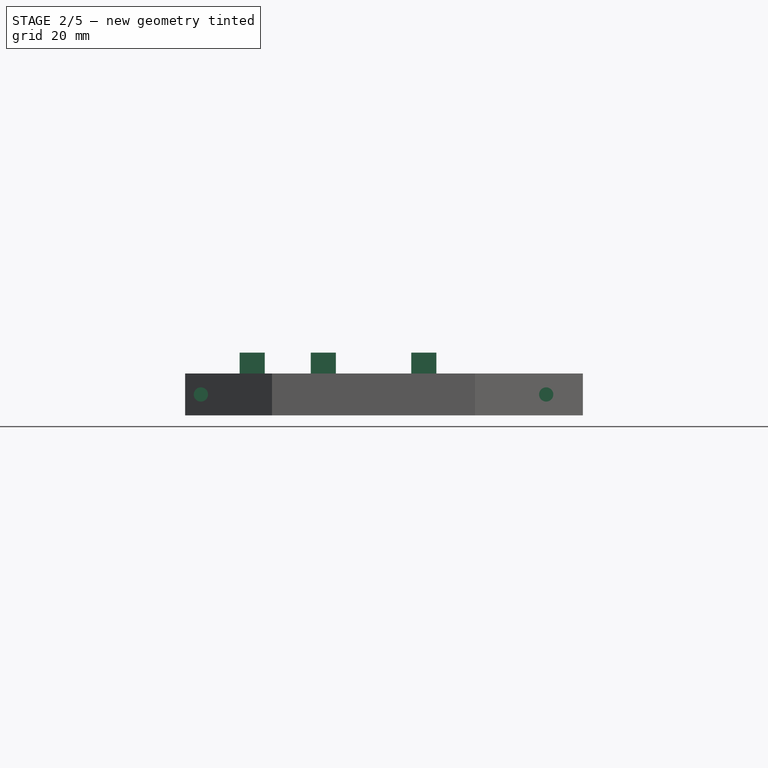
[diagram: stage 2 of 5 — front view after this stage's code; geometry added in this stage tinted green]
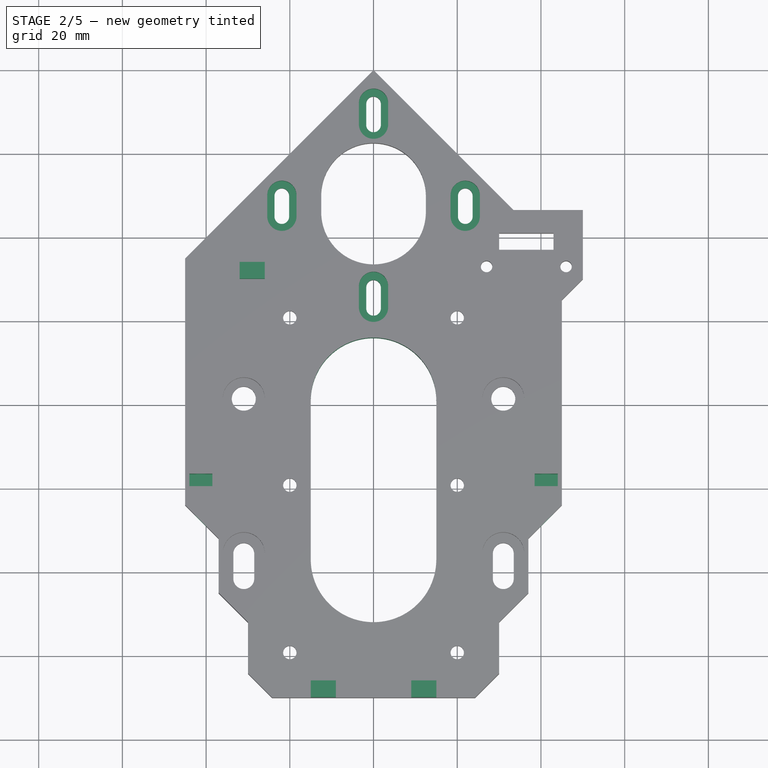
[diagram: stage 2 of 5 — top view after this stage's code; geometry added in this stage tinted green]
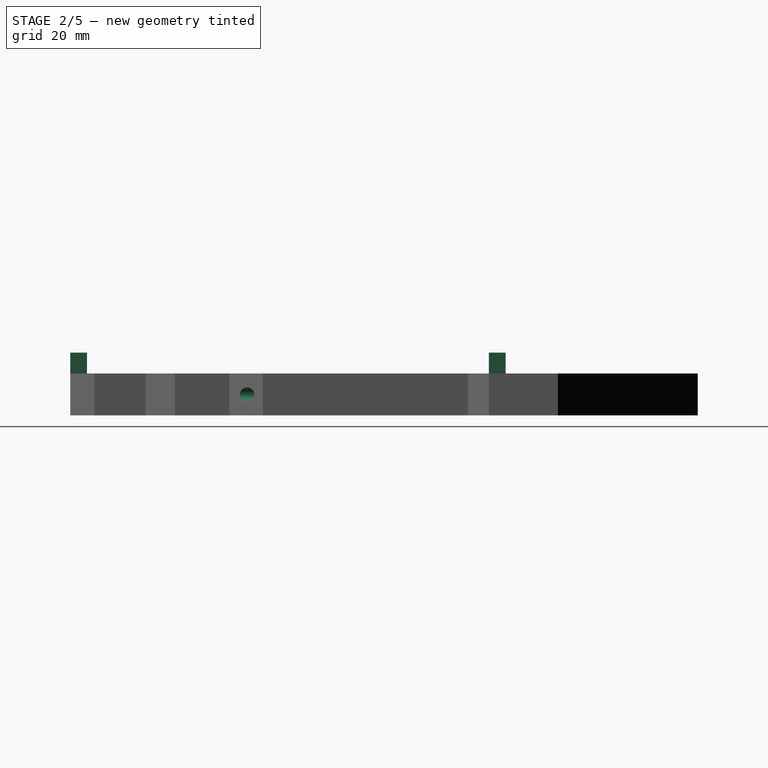
[diagram: stage 2 of 5 — right view after this stage's code; geometry added in this stage tinted green]
FEATURE [PartDesign::Pocket] Pocket007
  AllowMultiFace = false
  BaseFeature = -> Pocket002
  Direction = (1,1,1)
  Length = 5
  Length2 = 100
  Profile = -> Sketch013
  Type = 0
FEATURE [PartDesign::Pocket] Pocket009
  BaseFeature = -> Pocket007
  Direction = (1,1,1)
  Length = 5
  Length2 = 100
  Profile = -> Sketch014
  Type = 1
FEATURE [Sketcher::SketchObject] Sketch016  label="M5Nut"
  FullyConstrained = true
  MapMode = 5
  Support = -> [XY_Plane]
  sketch-geometry (7):
    g0: LineSegment StartX=4.6188 StartY=-24.25 StartZ=0 EndX=2.3094 EndY=-20.25 EndZ=0
    g1: LineSegment StartX=2.3094 StartY=-20.25 StartZ=0 EndX=-2.3094 EndY=-20.25 EndZ=0
    g2: LineSegment StartX=-2.3094 StartY=-20.25 StartZ=0 EndX=-4.6188 EndY=-24.25 EndZ=0
    g3: LineSegment StartX=-4.6188 StartY=-24.25 StartZ=0 EndX=-2.3094 EndY=-28.25 EndZ=0
    g4: LineSegment StartX=-2.3094 StartY=-28.25 StartZ=0 EndX=2.3094 EndY=-28.25 EndZ=0
    g5: LineSegment StartX=2.3094 StartY=-28.25 StartZ=0 EndX=4.6188 EndY=-24.25 EndZ=0
    g6: Circle CenterX=0 CenterY=-24.25 CenterZ=0 NormalX=0 NormalY=0 NormalZ=1 AngleXU=0 Radius=4.6188
  constraints (17):
    c: Coincident(g0,g1)
    c: Coincident(g1,g2)
    c: Coincident(g2,g3)
    c: Coincident(g3,g4)
    c: Coincident(g4,g5)
    c: Coincident(g5,g0)
    c: Equal(g0, g1-g5) x5
    c: PointOnObject(g0,g6)
    c: PointOnObject(g1,g6)
    c: PointOnObject(g2,g6)
    c: PointOnObject(g3,g6)
    c: PointOnObject(g4,g6)
    c: PointOnObject(g5,g6)
    c: PointOnObject(g6,g-2)
    c: Distance(g2,g0) = 8
    c: Horizontal(g1)
    c: DistanceY(g6,g-1) = 24.25
FEATURE [PartDesign::Pocket] Pocket011
  BaseFeature = -> Pocket009
  Direction = (1,1,1)
  Length = 4
  Length2 = 100
  Profile = -> Sketch016
  Reversed = true
  Type = 0
FEATURE [Sketcher::SketchObject] Sketch017  label="LinearRailStopper"
  FullyConstrained = true
  MapMode = 5
  Support = -> [XY_Plane]
  sketch-geometry (12):
    g0: LineSegment StartX=-15 StartY=-30 StartZ=0 EndX=-9 EndY=-30 EndZ=0
    g1: LineSegment StartX=-9 StartY=-30 StartZ=0 EndX=-9 EndY=-26 EndZ=0
    g2: LineSegment StartX=-9 StartY=-26 StartZ=0 EndX=-15 EndY=-26 EndZ=0
    g3: LineSegment StartX=-15 StartY=-26 StartZ=0 EndX=-15 EndY=-30 EndZ=0
    g4: LineSegment StartX=15 StartY=-30 StartZ=0 EndX=9 EndY=-30 EndZ=0
    g5: LineSegment StartX=9 StartY=-30 StartZ=0 EndX=9 EndY=-26 EndZ=0
    g6: LineSegment StartX=9 StartY=-26 StartZ=0 EndX=15 EndY=-26 EndZ=0
    g7: LineSegment StartX=15 StartY=-26 StartZ=0 EndX=15 EndY=-30 EndZ=0
    g8: LineSegment StartX=-32 StartY=74 StartZ=0 EndX=-26 EndY=74 EndZ=0
    g9: LineSegment StartX=-26 StartY=74 StartZ=0 EndX=-26 EndY=70 EndZ=0
    g10: LineSegment StartX=-26 StartY=70 StartZ=0 EndX=-32 EndY=70 EndZ=0
    g11: LineSegment StartX=-32 StartY=70 StartZ=0 EndX=-32 EndY=74 EndZ=0
  constraints (35):
    c: Coincident(g0,g1)
    c: Coincident(g1,g2)
    c: Coincident(g2,g3)
    c: Coincident(g3,g0)
    c: Horizontal(g0)
    c: Horizontal(g2)
    c: Vertical(g1)
    c: Vertical(g3)
    c: Coincident(g4,g5)
    c: Coincident(g5,g6)
    c: Coincident(g6,g7)
    c: Coincident(g7,g4)
    c: Horizontal(g4)
    c: Horizontal(g6)
    c: Vertical(g5)
    c: Vertical(g7)
    c: Equal(g2,g6)
    c: Equal(g1,g7)
    c: DistanceY(g3,g3) = 4
    c: DistanceY(g4,g-1) = 30
    c: DistanceX(g2,g2) = 6
    c: DistanceX(g2,g6) = 30
    c: Symmetric(g1,g5,g-2)
    c: Coincident(g8,g9)
    c: Coincident(g9,g10)
    c: Coincident(g10,g11)
    c: Coincident(g11,g8)
    c: Horizontal(g8)
    c: Horizontal(g10)
    c: Vertical(g9)
    c: Vertical(g11)
    c: Equal(g8,g2)
    c: Equal(g3,g11)
    c: DistanceX(g9,g-1) = 26
    c: DistanceY(g0,g9) = 100
FEATURE [PartDesign::Pad] Pad003
  BaseFeature = -> Pocket011
  Direction = (1,1,1)
  Length = 15
  Length2 = 100
  Profile = -> Sketch017
  Type = 0
FEATURE [Sketcher::SketchObject] Sketch018  label="VerticalHoles"
  FullyConstrained = true
  MapMode = 5
  Placement = pos=(0,0,0) rot=(1,0,0;1.5708rad)
  Support = -> [XZ_Plane]
  sketch-geometry (2):
    g0: Circle CenterX=-41.25 CenterY=5 CenterZ=0 NormalX=0 NormalY=0 NormalZ=1 AngleXU=0 Radius=3
    g1: Circle CenterX=41.25 CenterY=5 CenterZ=0 NormalX=0 NormalY=0 NormalZ=1 AngleXU=0 Radius=3
  constraints (5):
    c: Equal(g0,g1)
    c: Symmetric(g0,g1,g-2)
    c: DistanceX(g0,g1) = 82.5
    c: DistanceY(g-1,g1) = 5
    c: Radius(g1) = 3
FEATURE [PartDesign::Hole] Hole001
  BaseFeature = -> Pad003
  CustomThreadClearance = 0
  Depth = 35
  DepthType = 0
  Diameter = 3.4
  DrillForDepth = false
  DrillPoint = 0
  DrillPointAngle = 118
  HoleCutCountersinkAngle = 90
  HoleCutCustomValues = false
  HoleCutDepth = 0
  HoleCutDiameter = 6.1
  HoleCutType = 0
  ModelThread = false
  Profile = -> Sketch018
  Tapered = false
  TaperedAngle = 90
  ThreadClass = 0
  ThreadDepth = 23.5
  ThreadDepthType = 0
  ThreadDirection = 0
  ThreadFit = 0
  ThreadSize = 9
  ThreadType = 1
  Threaded = false
  UseCustomThreadClearance = false
FEATURE [Sketcher::SketchObject] Sketch021  label="IdlerBoltHole"
  FullyConstrained = true
  MapMode = 2
  sketch-geometry (1):
    g0: Circle CenterX=0 CenterY=-24 CenterZ=0 NormalX=0 NormalY=0 NormalZ=1 AngleXU=0 Radius=2.5
  constraints (3):
    c: PointOnObject(g0,g-2)
    c: DistanceY(g0,g-1) = 24
    c: Diameter(g0) = 5
FEATURE [Sketcher::SketchObject] Sketch023  label="Cable-tie routing"
  AttachmentOffset = pos=(0,0,3) rot=(0,0,1;0rad)
  FullyConstrained = true
  MapMode = 5
  Placement = pos=(0,0,3) rot=(0,0,1;0rad)
  Support = -> [XY_Plane]
  sketch-geometry (4):
    g0: Circle CenterX=-33 CenterY=88 CenterZ=0 NormalX=0 NormalY=0 NormalZ=1 AngleXU=0 Radius=3
    g1: Circle CenterX=-33 CenterY=88 CenterZ=0 NormalX=0 NormalY=0 NormalZ=1 AngleXU=0 Radius=5
    g2: Circle CenterX=33 CenterY=88 CenterZ=0 NormalX=0 NormalY=0 NormalZ=1 AngleXU=0 Radius=3
    g3: Circle CenterX=33 CenterY=88 CenterZ=0 NormalX=0 NormalY=0 NormalZ=1 AngleXU=0 Radius=5
  constraints (9):
    c: Coincident(g1,g0)
    c: Diameter(g1) = 10
    c: Diameter(g0) = 6
    c: Coincident(g3,g2)
    c: Equal(g0,g2)
    c: Equal(g1,g3)
    c: Symmetric(g0,g2,g-2)
    c: DistanceX(g0,g-1) = 33
    c: DistanceY(g-1,g2) = 88
FEATURE [PartDesign::Plane] DatumPlane007  label="PrintPlane"
  Length = 124.255
  MapMode = 5
  ResizeMode = 0
  Support = -> [XY_Plane]
  Width = 171.338
FEATURE [PartDesign::Plane] DatumPlane008
  Length = 124.255
  MapMode = 5
  Placement = pos=(0,0,10) rot=(0,0,1;0rad)
  ResizeMode = 0
  Support = -> [Hole001]
  Width = 171.338
FEATURE [Sketcher::SketchObject] Sketch019
  FullyConstrained = true
  MapMode = 5
  Placement = pos=(0,0,10) rot=(0,0,1;0rad)
  Support = -> [DatumPlane008]
  sketch-geometry (10):
    g0: LineSegment StartX=-41.25 StartY=22 StartZ=0 EndX=41.25 EndY=22 EndZ=0
    g1: LineSegment StartX=-44 StartY=23.5 StartZ=0 EndX=-38.5 EndY=23.5 EndZ=0
    g2: LineSegment StartX=-38.5 StartY=23.5 StartZ=0 EndX=-38.5 EndY=20.5 EndZ=0
    g3: LineSegment StartX=-38.5 StartY=20.5 StartZ=0 EndX=-44 EndY=20.5 EndZ=0
    g4: LineSegment StartX=-44 StartY=20.5 StartZ=0 EndX=-44 EndY=23.5 EndZ=0
    g5: LineSegment StartX=38.5 StartY=23.5 StartZ=0 EndX=44 EndY=23.5 EndZ=0
    g6: LineSegment StartX=44 StartY=23.5 StartZ=0 EndX=44 EndY=20.5 EndZ=0
    g7: LineSegment StartX=44 StartY=20.5 StartZ=0 EndX=38.5 EndY=20.5 EndZ=0
    g8: LineSegment StartX=38.5 StartY=20.5 StartZ=0 EndX=38.5 EndY=23.5 EndZ=0
    g9: LineSegment StartX=-31.25 StartY=41.5 StartZ=0 EndX=31.25 EndY=41.5 EndZ=0
  constraints (28):
    c: DistanceX(g0,g0) = 82.5
    c: Symmetric(g0,g0,g-2)
    c: Coincident(g1,g2)
    c: Coincident(g2,g3)
    c: Coincident(g3,g4)
    c: Coincident(g4,g1)
    c: Horizontal(g1)
    c: Horizontal(g3)
    c: Vertical(g2)
    c: Vertical(g4)
    c: Coincident(g5,g6)
    c: Coincident(g6,g7)
    c: Coincident(g7,g8)
    c: Coincident(g8,g5)
    c: Horizontal(g5)
    c: Horizontal(g7)
    c: Vertical(g6)
    c: Vertical(g8)
    c: Symmetric(g1,g2,g0)
    c: Symmetric(g5,g6,g0)
    c: Equal(g3,g7)
    c: Equal(g4,g8)
    c: DistanceX(g3,g3) = 5.5
    c: DistanceY(g6,g6) = 3
    c: DistanceY(g-1,g9) = 41.5
    c: DistanceY(g0,g9) = 19.5
    c: DistanceX(g9,g9) = 62.5
    c: Symmetric(g9,g9,g-2)
FEATURE [PartDesign::Pocket] Pocket012
  BaseFeature = -> Hole001
  Direction = (1,1,1)
  Length = 8
  Length2 = 100
  Profile = -> Sketch019
  Type = 0
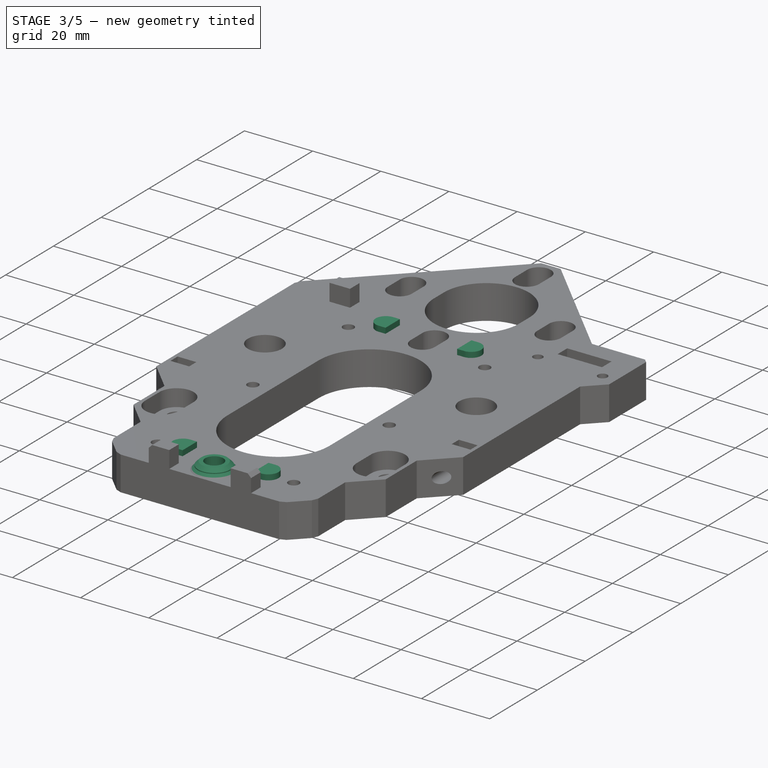
[diagram: stage 3 of 5 — iso view after this stage's code; geometry added in this stage tinted green]
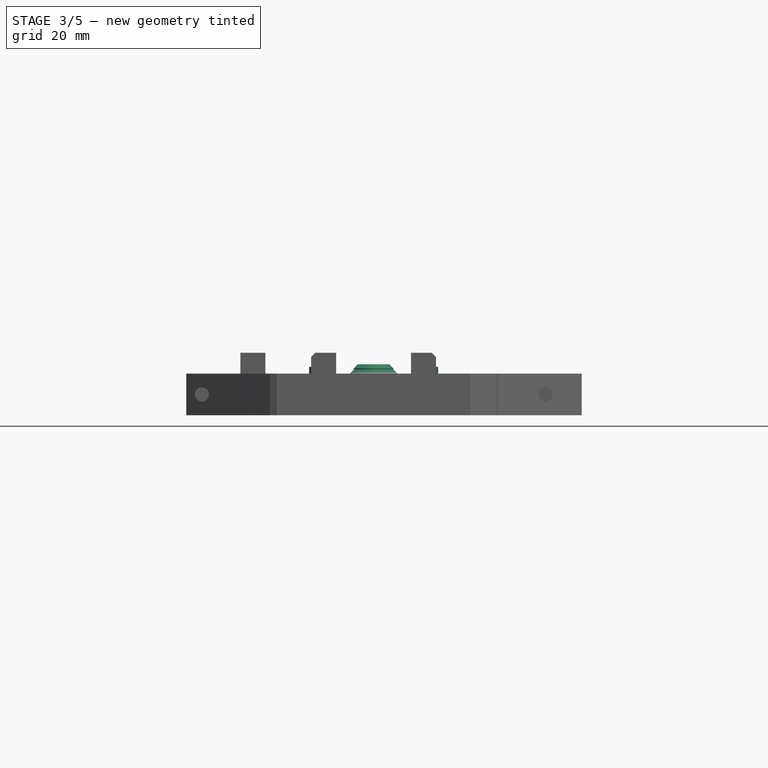
[diagram: stage 3 of 5 — front view after this stage's code; geometry added in this stage tinted green]
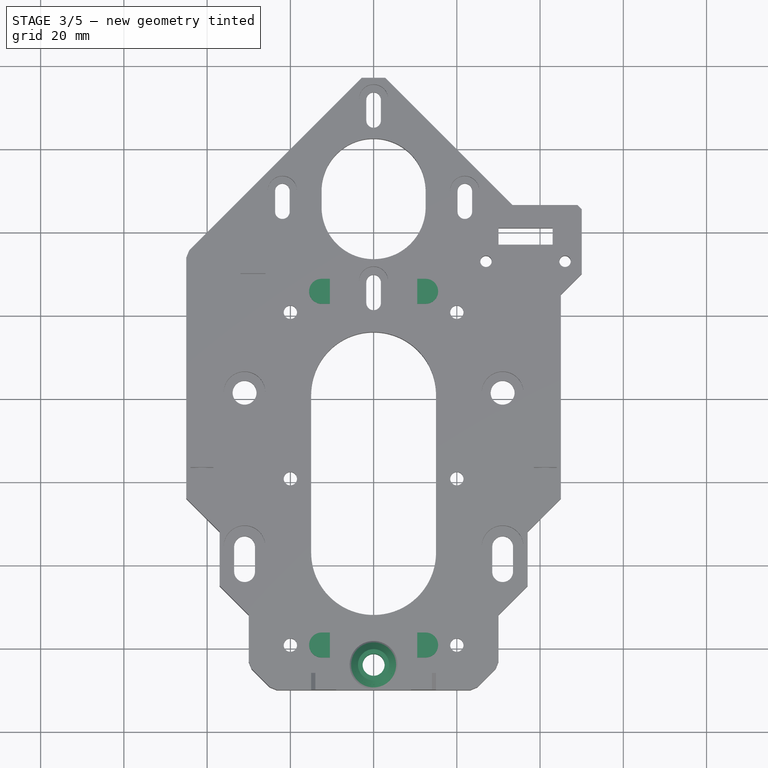
[diagram: stage 3 of 5 — top view after this stage's code; geometry added in this stage tinted green]
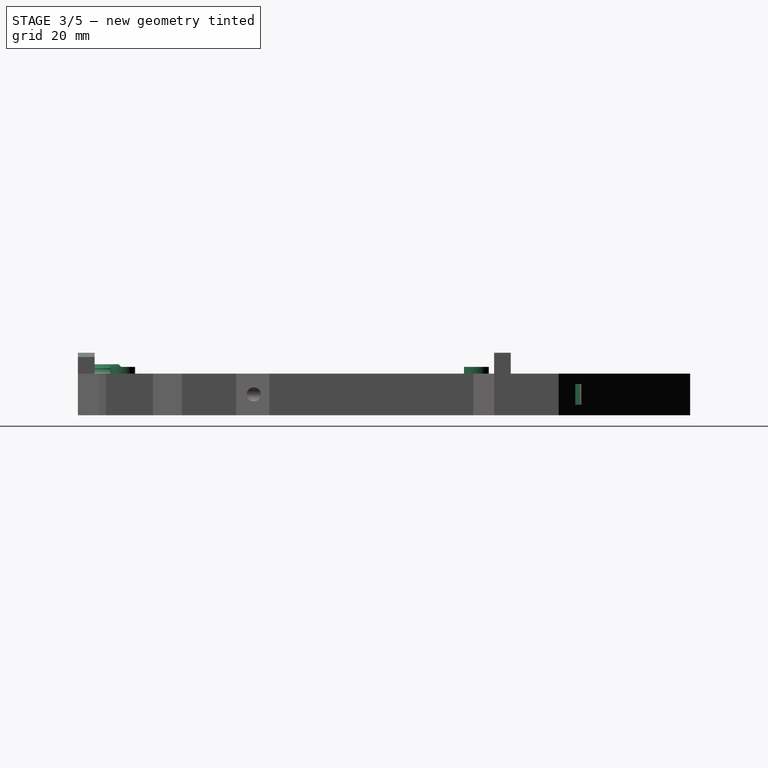
[diagram: stage 3 of 5 — right view after this stage's code; geometry added in this stage tinted green]
FEATURE [Sketcher::SketchObject] Sketch020  label="IdlerSpacer"
  FullyConstrained = true
  MapMode = 5
  Placement = pos=(0,0,10) rot=(0,0,1;0rad)
  Support = -> [DatumPlane008]
  sketch-geometry (1):
    g0: Circle CenterX=0 CenterY=-24 CenterZ=0 NormalX=0 NormalY=0 NormalZ=1 AngleXU=0 Radius=4.75
  constraints (3):
    c: PointOnObject(g0,g-2)
    c: DistanceY(g0,g-1) = 24
    c: Diameter(g0) = 9.5
FEATURE [PartDesign::Pad] Pad004  label="IdlerSpacerPad"
  BaseFeature = -> Pocket012
  Direction = (1,1,1)
  Length = 2.25
  Length2 = 100
  Profile = -> Sketch020
  Type = 0
FEATURE [PartDesign::Hole] Hole002
  BaseFeature = -> Pad004
  CustomThreadClearance = 0
  Depth = 25
  DepthType = 0
  Diameter = 5.3
  DrillForDepth = false
  DrillPoint = 0
  DrillPointAngle = 118
  HoleCutCountersinkAngle = 90
  HoleCutCustomValues = false
  HoleCutDepth = 0
  HoleCutDiameter = 6.1
  HoleCutType = 0
  ModelThread = false
  Profile = -> Sketch021
  Reversed = true
  Tapered = false
  TaperedAngle = 90
  ThreadClass = 0
  ThreadDepth = 23.5
  ThreadDepthType = 0
  ThreadDirection = 0
  ThreadFit = 1
  ThreadSize = 13
  ThreadType = 1
  Threaded = false
  UseCustomThreadClearance = false
FEATURE [PartDesign::Pocket] Pocket013
  BaseFeature = -> Hole002
  Direction = (1,1,1)
  Length = 0.5
  Length2 = 4.5
  Profile = -> Sketch023
  Reversed = true
  Type = 4
FEATURE [PartDesign::Chamfer] Chamfer
  Angle = 45
  Base = -> Pocket013 [Edge415,Edge427,Edge210,Edge209,Edge217,Edge218,Edge407,Edge224,Edge439,Edge156]
  BaseFeature = -> Pocket013
  ChamferType = 0
  FlipDirection = false
  Size = 1
  Size2 = 1
  SupportTransform = false
  UseAllEdges = false
FEATURE [PartDesign::Chamfer] Chamfer001
  Angle = 45
  Base = -> Chamfer [Edge181]
  BaseFeature = -> Chamfer
  ChamferType = 0
  FlipDirection = false
  Size = 4
  Size2 = 1
  SupportTransform = false
  UseAllEdges = false
FEATURE [PartDesign::Line] DatumLine
  AttacherType = Attacher::AttachEngineLine
  Length = 20
  MapMode = 19
  Placement = pos=(-20,20.75,10) rot=(0,0,1;3.14159rad)
  ResizeMode = 0
  Support = -> [Chamfer001]
FEATURE [PartDesign::Plane] DatumPlane009
  Length = 124.255
  MapMode = 2
  Placement = pos=(-20,20.75,10) rot=(0,0,1;3.14159rad)
  ResizeMode = 0
  Support = -> [DatumLine]
  Width = 171.338
FEATURE [Sketcher::SketchObject] Sketch024
  ExternalGeometry = -> [Chamfer001]
  FullyConstrained = true
  MapMode = 5
  Placement = pos=(-20,20.75,10) rot=(0,0,1;3.14159rad)
  Support = -> [DatumPlane009]
  sketch-geometry (15):
    g0: LineSegment StartX=4.5 StartY=50 StartZ=0 EndX=-4.5 EndY=50 EndZ=0
    g1: LineSegment StartX=-4.5 StartY=50 StartZ=0 EndX=-4.5 EndY=-50 EndZ=0
    g2: LineSegment StartX=-4.5 StartY=-50 StartZ=0 EndX=4.5 EndY=-50 EndZ=0
    g3: LineSegment StartX=4.5 StartY=-50 StartZ=0 EndX=4.5 EndY=50 EndZ=0
    g4: ArcOfCircle CenterX=-7.5 CenterY=-45 CenterZ=0 NormalX=0 NormalY=0 NormalZ=1 AngleXU=0 Radius=3 StartAngle=4.71239 EndAngle=7.85398
    g5: LineSegment StartX=-7.5 StartY=-42 StartZ=0 EndX=-9.5 EndY=-42 EndZ=0
    g6: LineSegment StartX=-9.5 StartY=-42 StartZ=0 EndX=-9.5 EndY=-48 EndZ=0
    g7: LineSegment StartX=-9.5 StartY=-48 StartZ=0 EndX=-7.5 EndY=-48 EndZ=0
    g8: GeomPoint X=-9.5 Y=-45 Z=0
    g9: GeomPoint X=-16.5 Y=-45 Z=0
    g10: ArcOfCircle CenterX=-7.5 CenterY=40 CenterZ=0 NormalX=0 NormalY=0 NormalZ=1 AngleXU=0 Radius=3 StartAngle=4.71239 EndAngle=7.85398
    g11: LineSegment StartX=-9.5 StartY=43 StartZ=0 EndX=-9.5 EndY=37 EndZ=0
    g12: LineSegment StartX=-9.5 StartY=37 StartZ=0 EndX=-7.5 EndY=37 EndZ=0
    g13: GeomPoint X=-9.5 Y=40 Z=0
    g14: LineSegment StartX=-7.5 StartY=43 StartZ=0 EndX=-9.5 EndY=43 EndZ=0
  constraints (39):
    c: Coincident(g0,g1)
    c: Coincident(g1,g2)
    c: Coincident(g2,g3)
    c: Coincident(g3,g0)
    c: Horizontal(g0)
    c: Vertical(g1)
    c: Symmetric(g1,g2,g-2)
    c: DistanceY(g3,g3) = 100
    c: Symmetric(g0,g2,g-1)
    c: DistanceX(g0,g0) = 9
    c: Vertical(g4,g4)
    c: Vertical(g4,g4)
    c: Coincident(g5,g4)
    c: Horizontal(g5)
    c: Coincident(g6,g5)
    c: Vertical(g6)
    c: Coincident(g7,g6)
    c: Coincident(g7,g4)
    c: Horizontal(g7)
    c: Tangent(g4,g1)
    c: Diameter(g4) = 6
    c: DistanceX(g6,g4) = 2
    c: Symmetric(g-3,g-3,g9)
    c: Symmetric(g6,g6,g8)
    c: Horizontal(g9,g8)
    c: Vertical(g10,g10)
    c: Vertical(g10,g10)
    c: Vertical(g11)
    c: Coincident(g12,g11)
    c: Coincident(g12,g10)
    c: Horizontal(g12)
    c: Diameter(g10) = 6
    c: Symmetric(g11,g11,g13)
    c: Coincident(g14,g10)
    c: Horizontal(g14)
    c: Coincident(g11,g14)
    c: Tangent(g10,g1)
    c: Vertical(g5,g11)
    c: DistanceY(g-1,g13) = 40
FEATURE [PartDesign::Pad] Pad005
  BaseFeature = -> Chamfer001
  Direction = (1,1,1)
  Length = 1.6
  Length2 = 100
  Profile = -> Sketch024
  Type = 0
FEATURE [PartDesign::Mirrored] Mirrored
  BaseFeature = -> Pad005
  MirrorPlane = -> YZ_Plane
  Originals = -> [Pad005]
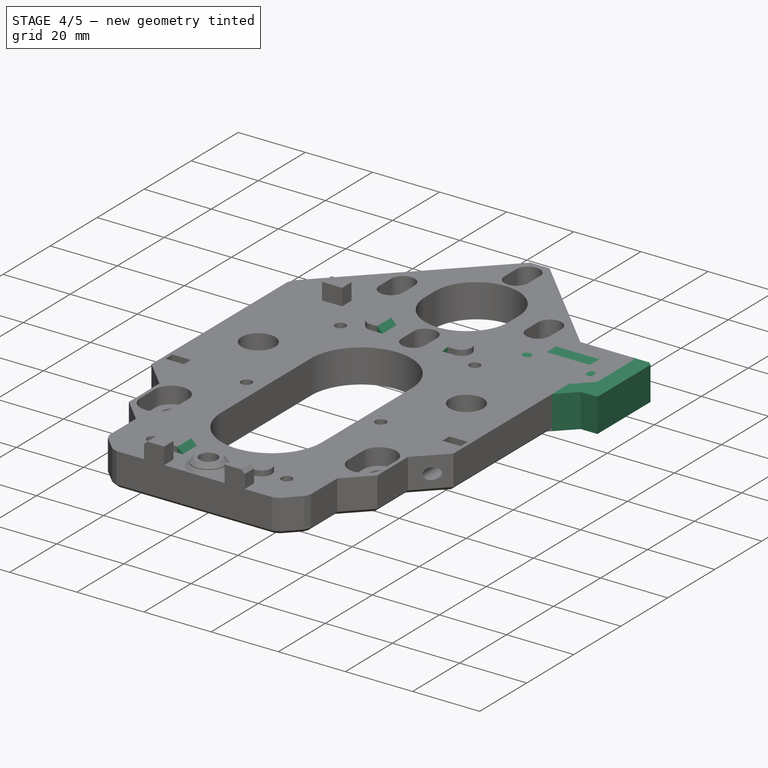
[diagram: stage 4 of 5 — iso view after this stage's code; geometry added in this stage tinted green]
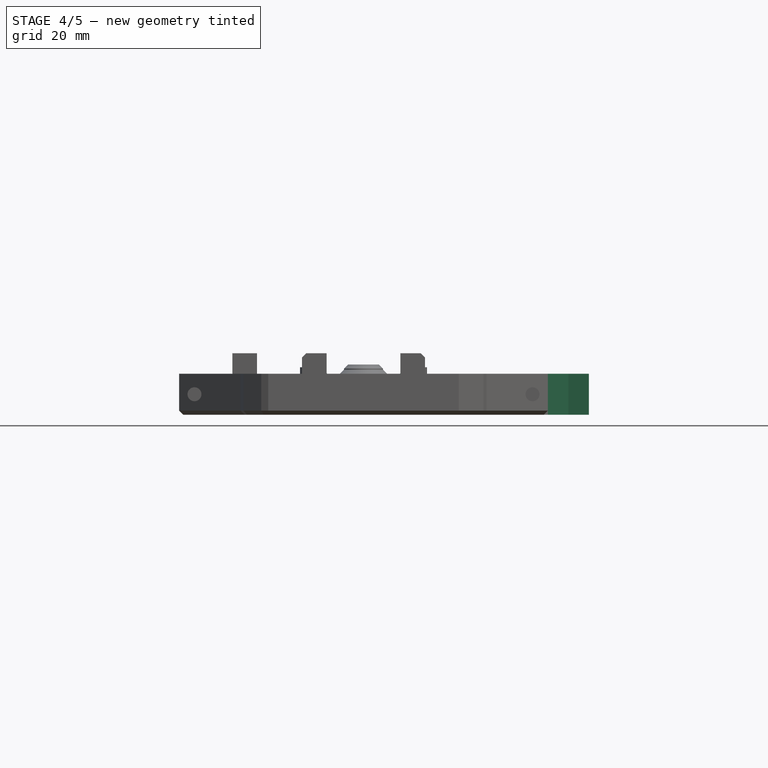
[diagram: stage 4 of 5 — front view after this stage's code; geometry added in this stage tinted green]
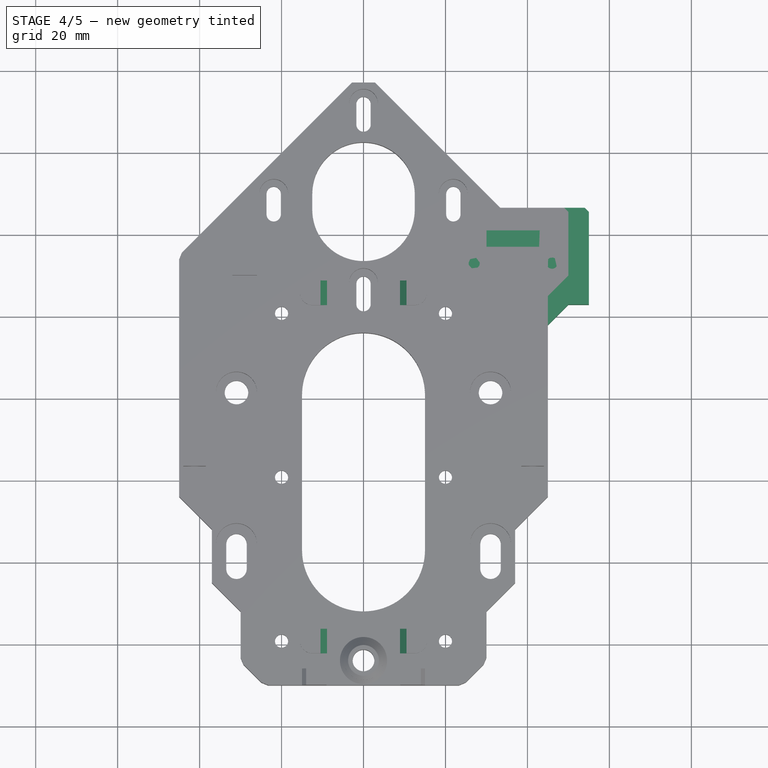
[diagram: stage 4 of 5 — top view after this stage's code; geometry added in this stage tinted green]
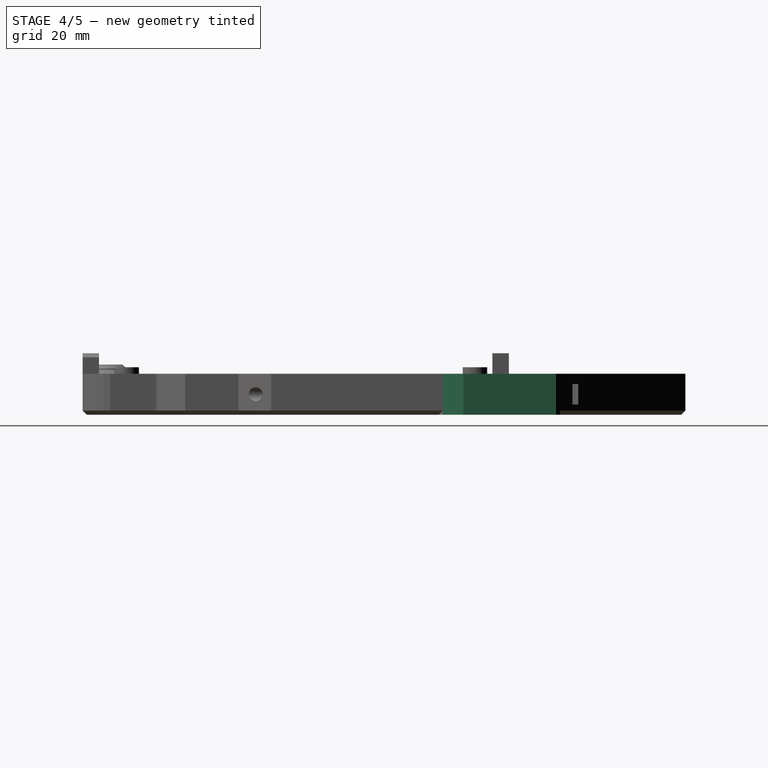
[diagram: stage 4 of 5 — right view after this stage's code; geometry added in this stage tinted green]
FEATURE [PartDesign::Chamfer] Chamfer002
  Angle = 45
  Base = -> Mirrored [Edge393,Edge402,Edge424,Edge439]
  BaseFeature = -> Mirrored
  ChamferType = 0
  FlipDirection = false
  Size = 1.5999
  Size2 = 1
  SupportTransform = false
  UseAllEdges = false
FEATURE [PartDesign::Chamfer] Chamfer003
  Angle = 45
  Base = -> Chamfer002 [Edge156,Edge134,Edge138,Edge127,Edge148,Edge192,Edge231,Edge221,Edge212,Edge216,Edge226,Edge208,Edge203,Edge197,Edge160,Edge170,Edge174,Edge182,Edge188,Edge190,Edge195]
  BaseFeature = -> Chamfer002
  ChamferType = 0
  FlipDirection = false
  Size = 1
  Size2 = 1
  SupportTransform = false
  UseAllEdges = false
FEATURE [PartDesign::Pad] Pad006  label="Fill in OG Limit Switch Backside THT Clearance Holes"
  BaseFeature = -> Chamfer003
  Direction = (0,0,1)
  Length = 10
  Length2 = 10
  Profile = -> Chamfer [Edge340,Edge153,Edge154,Edge152]
  Reversed = true
  Type = 0
FEATURE [PartDesign::Pad] Pad007  label="Fill in OG Limit Switch Mounting Holes"
  BaseFeature = -> Pad006
  Direction = (0,0,1)
  Length = 10
  Length2 = 10
  Profile = -> Pad006 [Edge361,Edge54,Edge342,Edge343,Edge52,Edge352,Edge344,Edge53]
  Reversed = true
  Type = 0
FEATURE [PartDesign::Pad] Pad008  label="Lengthen Limit Switch "Ear" 5mm Downward"
  BaseFeature = -> Pad007
  Direction = (0,1,0)
  Length = 5
  Length2 = 10
  Profile = -> Pad007 [Face136]
  ReferenceAxis = -> Pad007 [Edge169]
  Reversed = true
  Type = 0
FEATURE [PartDesign::Pad] Pad009
  BaseFeature = -> Pad008
  Direction = (1,0,0)
  Length = 5
  Length2 = 10
  Profile = -> Pad008 [Face234,Face235,Face116]
  Type = 0
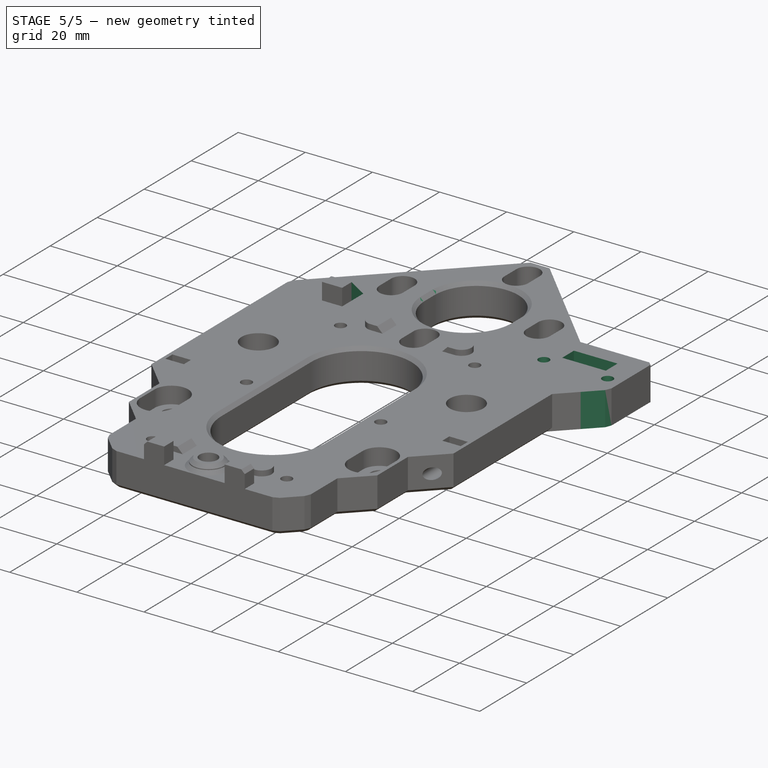
[diagram: stage 5 of 5 — iso view after this stage's code; geometry added in this stage tinted green]
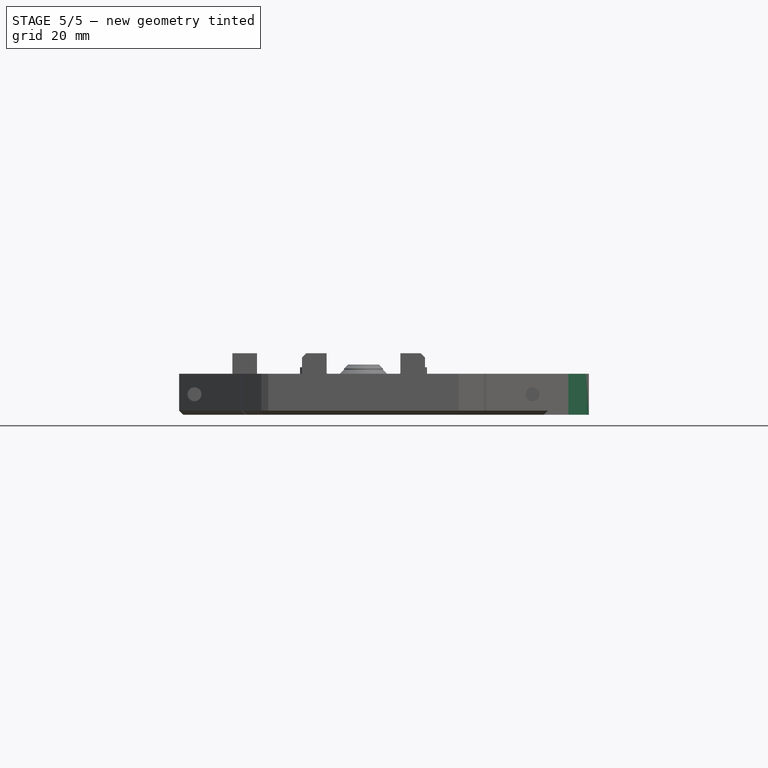
[diagram: stage 5 of 5 — front view after this stage's code; geometry added in this stage tinted green]
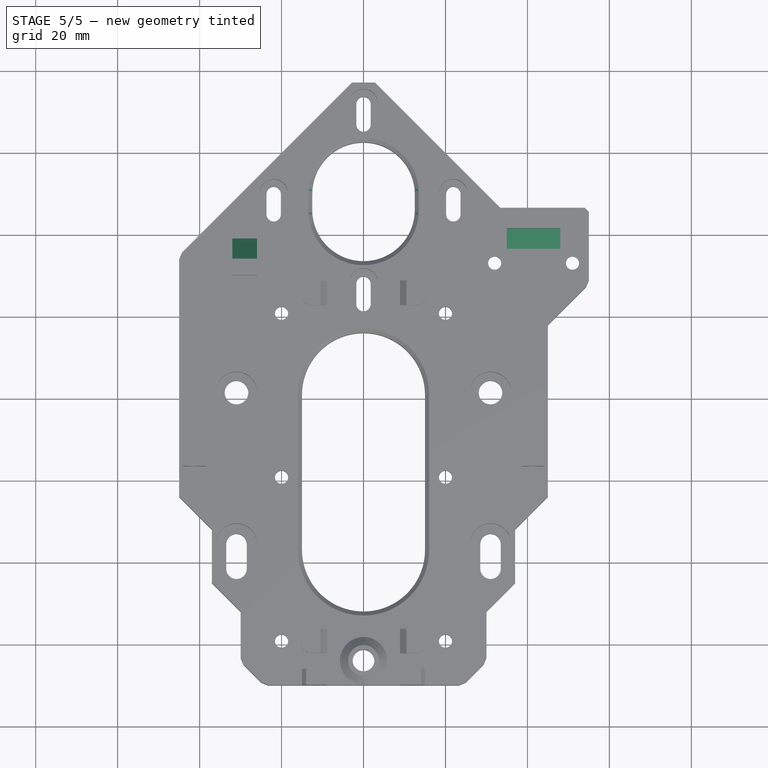
[diagram: stage 5 of 5 — top view after this stage's code; geometry added in this stage tinted green]
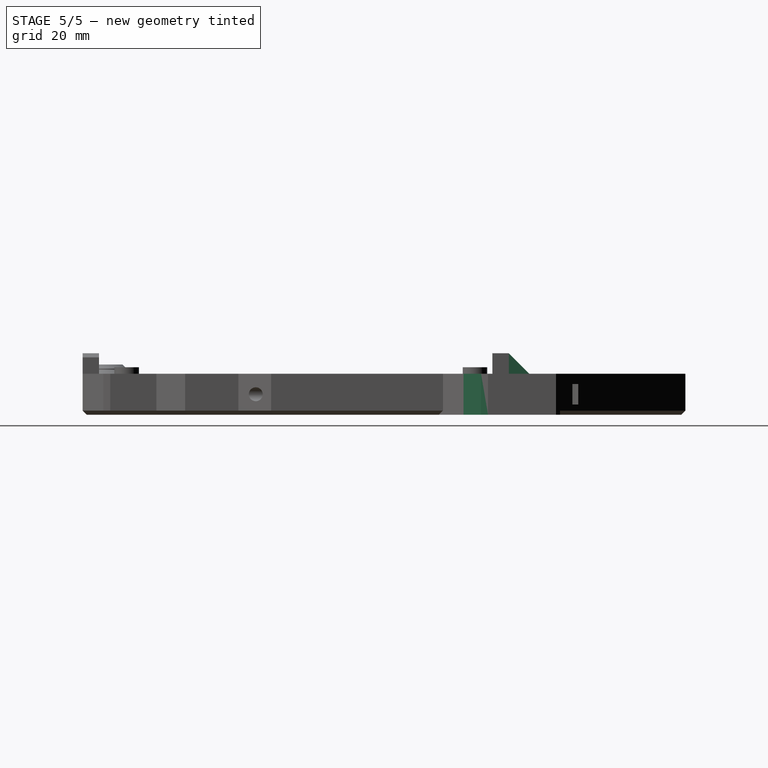
[diagram: stage 5 of 5 — right view after this stage's code; geometry added in this stage tinted green]
FEATURE [PartDesign::Plane] DatumPlane010
  Length = 193.406
  MapMode = 5
  Placement = pos=(-6.46447,6.46447,0) rot=(0.862856,0.357407,0.357407;1.71777rad)
  ResizeMode = 0
  Support = -> [Pad009]
  Width = 68.693
FEATURE [Sketcher::SketchObject] Sketch025
  FullyConstrained = false
  MapMode = 5
  Placement = pos=(-6.46447,6.46447,0) rot=(0.862856,0.357407,0.357407;1.71777rad)
  Support = -> [DatumPlane010]
  sketch-geometry (10):
    g0: ArcOfCircle CenterX=80.9453 CenterY=10.7639 CenterZ=0 NormalX=0 NormalY=0 NormalZ=1 AngleXU=0 Radius=4.2844 StartAngle=1.5708 EndAngle=3.14159
    g1: LineSegment StartX=80.9453 StartY=15.0483 StartZ=0 EndX=87.4149 EndY=15.0483 EndZ=0
    g2: ArcOfCircle CenterX=87.4149 CenterY=10.7639 CenterZ=0 NormalX=0 NormalY=0 NormalZ=1 AngleXU=0 Radius=4.2844 StartAngle=2e-16 EndAngle=1.5708
    g3: LineSegment StartX=91.6994 StartY=10.7639 StartZ=0 EndX=91.6994 EndY=-1.02438 EndZ=0
    g4: ArcOfCircle CenterX=87.4149 CenterY=-1.02438 CenterZ=0 NormalX=0 NormalY=0 NormalZ=1 AngleXU=0 Radius=4.2844 StartAngle=4.71239 EndAngle=6.28319
    g5: LineSegment StartX=87.4149 StartY=-5.30879 StartZ=0 EndX=80.9453 EndY=-5.30879 EndZ=0
    g6: ArcOfCircle CenterX=80.9453 CenterY=-1.02438 CenterZ=0 NormalX=0 NormalY=0 NormalZ=1 AngleXU=0 Radius=4.2844 StartAngle=3.14159 EndAngle=4.71239
    g7: LineSegment StartX=76.6609 StartY=-1.02438 StartZ=0 EndX=76.6609 EndY=10.7639 EndZ=0
    g8: GeomPoint X=76.6609 Y=15.0483 Z=0
    g9: GeomPoint X=91.6994 Y=-5.30879 Z=0
  constraints (19):
    c: Tangent(g0,g1) = 1.5708
    c: Tangent(g1,g2) = 1.5708
    c: Tangent(g2,g3) = 1.5708
    c: Tangent(g3,g4) = 1.5708
    c: Tangent(g4,g5) = 1.5708
    c: Tangent(g5,g6) = 1.5708
    c: Tangent(g6,g7) = 1.5708
    c: Tangent(g7,g0) = 1.5708
    c: Horizontal(g1)
    c: Horizontal(g5)
    c: Vertical(g3)
    c: Vertical(g7)
    c: Equal(g0,g2)
    c: Equal(g2,g4)
    c: Equal(g4,g6)
    c: PointOnObject(g8,g1)
    c: PointOnObject(g8,g7)
    c: PointOnObject(g9,g3)
    c: PointOnObject(g9,g5)
FEATURE [PartDesign::Pocket] Pocket014
  BaseFeature = -> Pad009
  Direction = (-0.707107,0.707107,0)
  Length = 5
  Length2 = 5
  Profile = -> Sketch025
  ReferenceAxis = -> Sketch025 [N_Axis]
  Reversed = true
  Type = 0
FEATURE [Sketcher::SketchObject] Sketch026
  FullyConstrained = true
  MapMode = 5
  Placement = pos=(-20,20.75,10) rot=(0,0,1;3.14159rad)
  Support = -> [DatumPlane009]
  sketch-geometry (2):
    g0: Circle CenterX=-52 CenterY=-52.25 CenterZ=0 NormalX=0 NormalY=0 NormalZ=1 AngleXU=0 Radius=1.6
    g1: Circle CenterX=-71 CenterY=-52.25 CenterZ=0 NormalX=0 NormalY=0 NormalZ=1 AngleXU=0 Radius=1.6
  constraints (6):
    c: Horizontal(g0,g1)
    c: DistanceX(g1,g0) = 19
    c: Equal(g1,g0)
    c: Diameter(g1) = 3.2
    c: DistanceX(g0,g-1) = 52
    c: DistanceY(g0,g-1) = 52.25
FEATURE [PartDesign::Pocket] Pocket015
  BaseFeature = -> Pocket014
  Direction = (0,-4e-16,-1)
  Length = 10
  Length2 = 5
  Profile = -> Sketch026
  ReferenceAxis = -> Sketch026 [N_Axis]
  Type = 0
FEATURE [Sketcher::SketchObject] Sketch027
  ExternalGeometry = -> [Pocket015]
  FullyConstrained = true
  MapMode = 5
  Support = -> [DatumPlane007]
  sketch-geometry (14):
    g0: LineSegment StartX=34.7 StartY=74.5588 StartZ=0 EndX=32 EndY=76.1177 EndZ=0
    g1: LineSegment StartX=32 StartY=76.1177 StartZ=0 EndX=29.3 EndY=74.5588 EndZ=0
    g2: LineSegment StartX=29.3 StartY=74.5588 StartZ=0 EndX=29.3 EndY=71.4412 EndZ=0
    g3: LineSegment StartX=29.3 StartY=71.4412 StartZ=0 EndX=32 EndY=69.8823 EndZ=0
    g4: LineSegment StartX=32 StartY=69.8823 StartZ=0 EndX=34.7 EndY=71.4412 EndZ=0
    g5: LineSegment StartX=34.7 StartY=71.4412 StartZ=0 EndX=34.7 EndY=74.5588 EndZ=0
    g6: Circle CenterX=32 CenterY=73 CenterZ=0 NormalX=0 NormalY=0 NormalZ=1 AngleXU=0 Radius=3.11769
    g7: LineSegment StartX=51 StartY=76.1177 StartZ=0 EndX=48.3 EndY=74.5588 EndZ=0
    g8: LineSegment StartX=48.3 StartY=74.5588 StartZ=0 EndX=48.3 EndY=71.4412 EndZ=0
    g9: LineSegment StartX=48.3 StartY=71.4412 StartZ=0 EndX=51 EndY=69.8823 EndZ=0
    g10: LineSegment StartX=51 StartY=69.8823 StartZ=0 EndX=53.7 EndY=71.4412 EndZ=0
    g11: LineSegment StartX=53.7 StartY=71.4412 StartZ=0 EndX=53.7 EndY=74.5588 EndZ=0
    g12: LineSegment StartX=53.7 StartY=74.5588 StartZ=0 EndX=51 EndY=76.1177 EndZ=0
    g13: Circle CenterX=51 CenterY=73 CenterZ=0 NormalX=0 NormalY=0 NormalZ=1 AngleXU=0 Radius=3.11769
  constraints (32):
    c: Coincident(g0,g1)
    c: Coincident(g1,g2)
    c: Coincident(g2,g3)
    c: Coincident(g3,g4)
    c: Coincident(g4,g5)
    c: Coincident(g5,g0)
    c: Equal(g0, g1-g5) x5
    c: PointOnObject(g0,g6)
    c: PointOnObject(g1,g6)
    c: PointOnObject(g2,g6)
    c: PointOnObject(g3,g6)
    c: PointOnObject(g4,g6)
    c: PointOnObject(g5,g6)
    c: Coincident(g6,g-4)
    c: Coincident(g7,g8)
    c: Coincident(g8,g9)
    c: Coincident(g9,g10)
    c: Coincident(g10,g11)
    c: Coincident(g11,g12)
    c: Coincident(g12,g7)
    c: Equal(g7, g8-g12) x5
    c: PointOnObject(g7,g13)
    c: PointOnObject(g8,g13)
    c: PointOnObject(g9,g13)
    c: PointOnObject(g10,g13)
    c: PointOnObject(g11,g13)
    c: PointOnObject(g12,g13)
    c: Coincident(g13,g-3)
    c: Vertical(g11)
    c: Vertical(g5)
    c: Equal(g6,g13)
    c: DistanceX(g7,g11) = 5.4
FEATURE [PartDesign::Pocket] Pocket016
  BaseFeature = -> Pocket015
  Direction = (0,0,-1)
  Length = 7.5
  Length2 = 5
  Profile = -> Sketch027
  ReferenceAxis = -> Sketch027 [N_Axis]
  Reversed = true
  Type = 0
FEATURE [PartDesign::Chamfer] Chamfer004
  Angle = 45
  Base = -> Pocket016 [Edge91]
  BaseFeature = -> Pocket016
  ChamferType = 0
  FlipDirection = false
  Size = 4.9999
  Size2 = 1
  SupportTransform = false
  UseAllEdges = false
FEATURE [Sketcher::SketchObject] Sketch028
  ExternalGeometry = -> [Chamfer004]
  FullyConstrained = true
  MapMode = 5
  Placement = pos=(-20,20.75,10) rot=(0,0,1;3.14159rad)
  Support = -> [DatumPlane009]
  sketch-geometry (10):
    g0: LineSegment StartX=-68 StartY=-55.75 StartZ=0 EndX=-55 EndY=-55.75 EndZ=0
    g1: LineSegment StartX=-55 StartY=-55.75 StartZ=0 EndX=-55 EndY=-58.25 EndZ=0
    g2: LineSegment StartX=-55 StartY=-58.25 StartZ=0 EndX=-68 EndY=-58.25 EndZ=0
    g3: LineSegment StartX=-68 StartY=-58.25 StartZ=0 EndX=-68 EndY=-55.75 EndZ=0
    g4: LineSegment StartX=-61.5 StartY=-52.25 StartZ=0 EndX=-61.5 EndY=-58.25 EndZ=0
    g5: LineSegment StartX=-68 StartY=-58.25 StartZ=0 EndX=-55 EndY=-58.25 EndZ=0
    g6: LineSegment StartX=-55 StartY=-58.25 StartZ=0 EndX=-55 EndY=-60.75 EndZ=0
    g7: LineSegment StartX=-55 StartY=-60.75 StartZ=0 EndX=-68 EndY=-60.75 EndZ=0
    g8: LineSegment StartX=-68 StartY=-60.75 StartZ=0 EndX=-68 EndY=-58.25 EndZ=0
    g9: LineSegment StartX=-71 StartY=-52.25 StartZ=0 EndX=-52 EndY=-52.25 EndZ=0
  constraints (25):
    c: Coincident(g0,g1)
    c: Coincident(g1,g2)
    c: Coincident(g2,g3)
    c: Coincident(g3,g0)
    c: Horizontal(g0)
    c: Horizontal(g2)
    c: Vertical(g1)
    c: Vertical(g3)
    c: Vertical(g4)
    c: Symmetric(g2,g2,g4)
    c: Coincident(g5,g6)
    c: Coincident(g6,g7)
    c: Coincident(g7,g8)
    c: Coincident(g8,g5)
    c: Horizontal(g7)
    c: Vertical(g6)
    c: Coincident(g5,g3)
    c: Coincident(g6,g1)
    c: Symmetric(g7,g0,g3)
    c: DistanceY(g4,g4) = 6
    c: DistanceY(g6,g0) = 5
    c: DistanceX(g7,g7) = 13
    c: Coincident(g9,g-5)
    c: Coincident(g9,g-6)
    c: Symmetric(g9,g9,g4)
FEATURE [PartDesign::Pocket] Pocket017
  BaseFeature = -> Chamfer004
  Direction = (0,-4e-16,-1)
  Length = 4
  Length2 = 5
  Profile = -> Sketch028
  ReferenceAxis = -> Sketch028 [N_Axis]
  Type = 0
FEATURE [PartDesign::Chamfer] Chamfer005
  Angle = 45
  Base = -> Pocket017 [Edge279,Edge278,Edge273,Edge276,Edge358,Edge359,Edge356,Edge354,Edge105,Edge104,Edge106,Edge107,Edge62,Edge64,Edge63,Edge65,Edge693]
  BaseFeature = -> Pocket017
  ChamferType = 0
  FlipDirection = false
  Size = 1
  Size2 = 1
  SupportTransform = false
  UseAllEdges = false
FEATURE [PartDesign::Body] Body
  Group = -> [Sketch,Pad,Hole,Sketch015,DatumPlane,Sketch001,Pocket,Sketch003,Pocket001,Sketch006,Pad002,Sketch005,Pocket002,Sketch013,Pocket007,Sketch014,Pocket009,Sketch016,Pocket011,Sketch017,Pad003,Sketch018,Hole001,DatumPlane008,Sketch019,Pocket012,Sketch020,Pad004,Sketch021,Hole002,Sketch023,Pocket013,DatumPlane007,Chamfer,Chamfer001,DatumLine,DatumPlane009,Sketch024,Pad005,Mirrored,Chamfer002,Chamfer003,+15 more]
  Origin = -> Origin
  Tip = -> Chamfer005
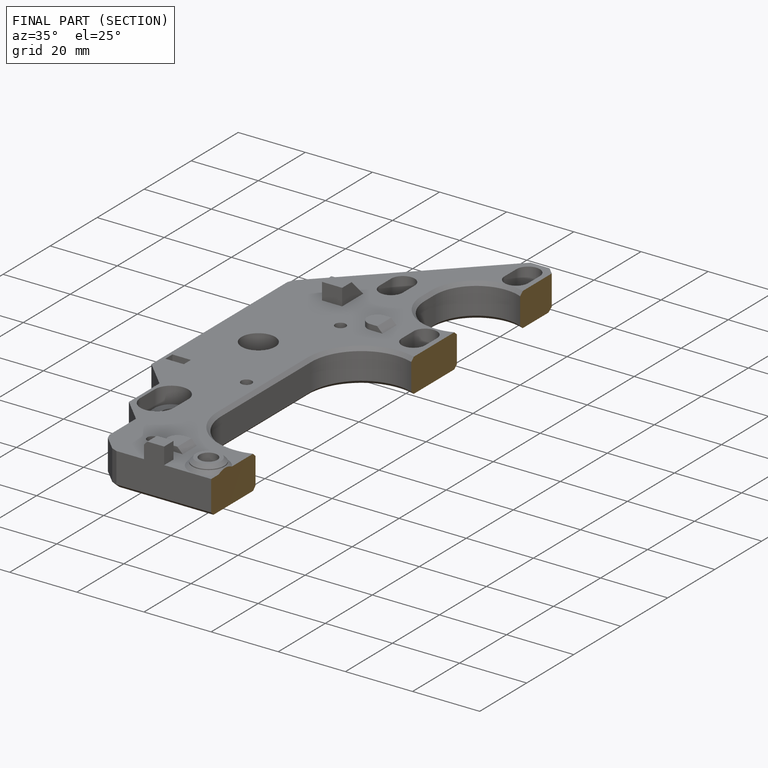
[diagram: finished part — half-section view (interior)]
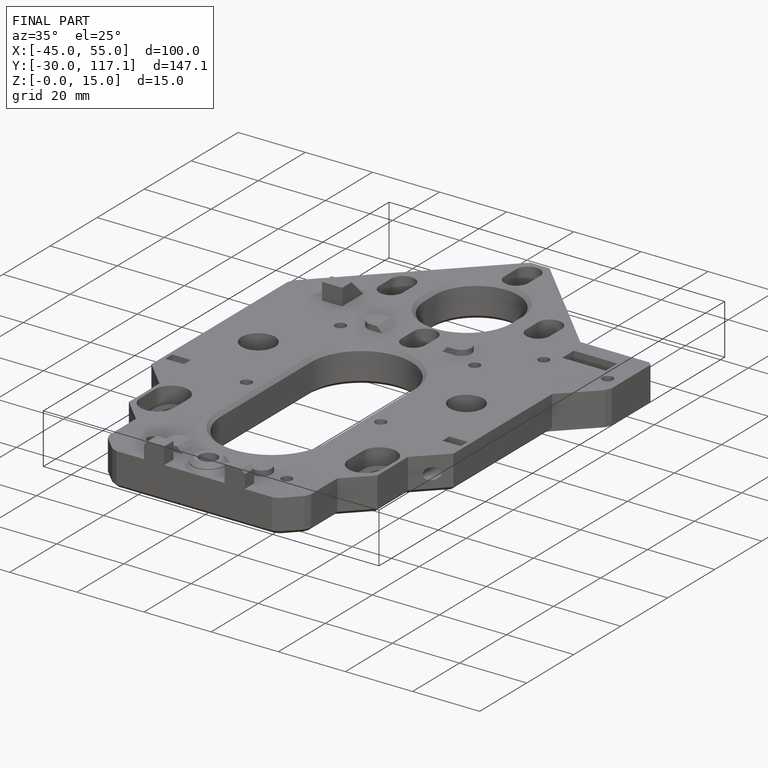
[diagram: finished part — iso view with bounding-box wireframe]
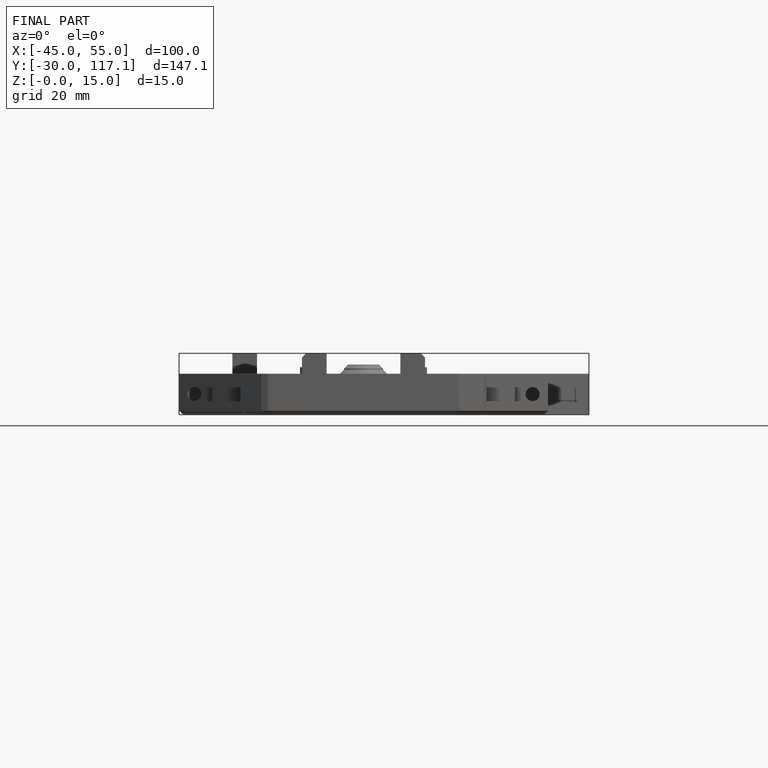
[diagram: finished part — front view with bounding-box wireframe]
